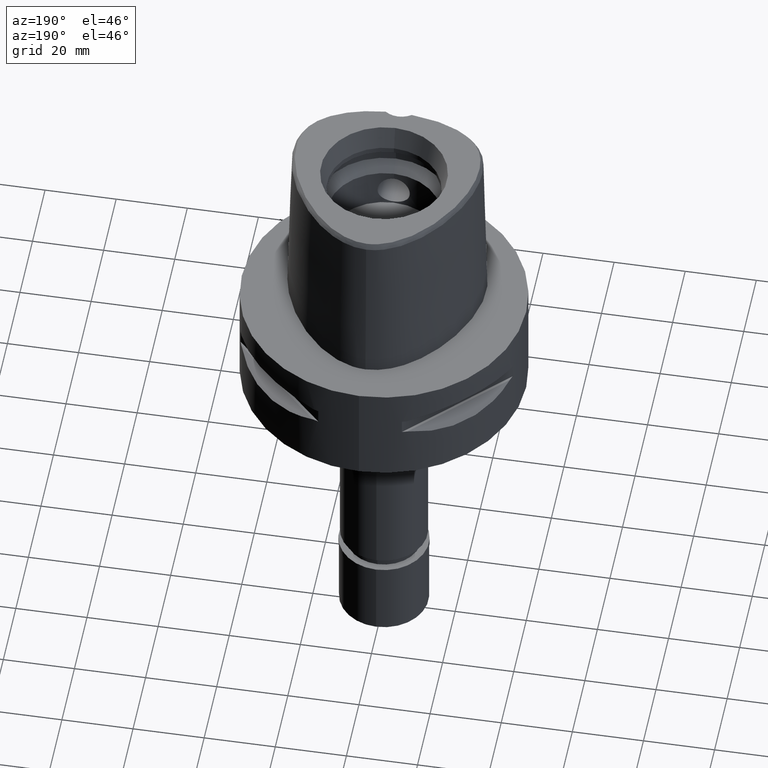
[diagram: clean part render]
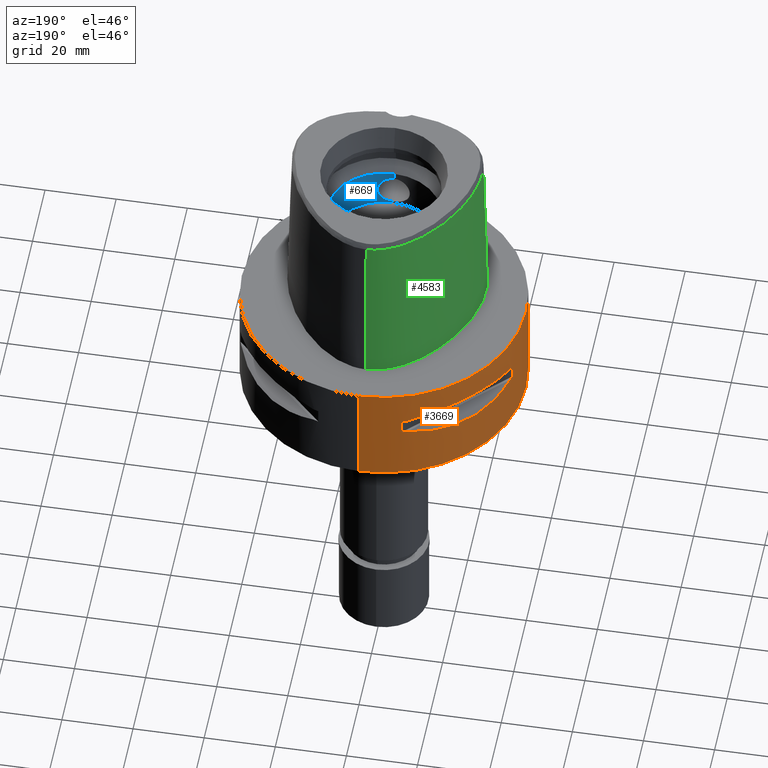
[diagram: same view with three faces highlighted in distinct colors, each labeled with its STEP entity id]
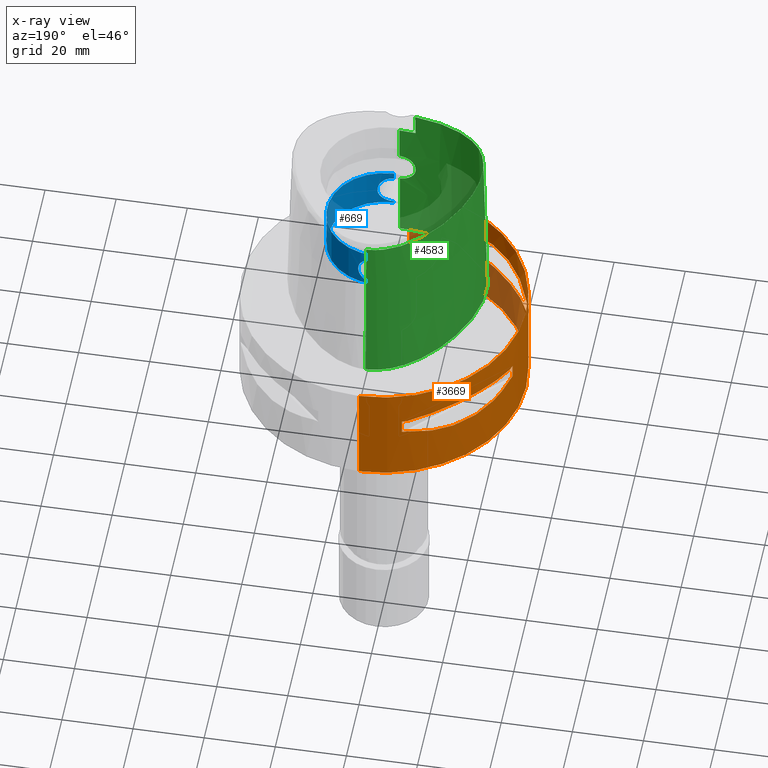
[diagram: x-ray of the same camera — body ghosted, the three highlighted faces saturated]
A machine part, auxiliary view with three faces highlighted in distinct colors.
The next image is the same camera in x-ray (body ghosted, the three faces saturated) — at least one of them is partly hidden behind the body in this view.
Their STEP definitions:

[orange] entity #3669 — the highlighted cylindrical surface (partial cylindrical patch) has radius 40 mm, axis along (0, 0, -1).
#14 = CARTESIAN_POINT ( 'NONE',  ( 0.0000000000000000000, 40.00000000000000000, -30.00000000000000000 ) ) ;
#29 = AXIS2_PLACEMENT_3D ( 'NONE', #2662, #1013, #4227 ) ;
#42 = EDGE_CURVE ( 'NONE', #272, #2557, #426, .T. ) ;
#62 = CARTESIAN_POINT ( 'NONE',  ( -11.76033600280999991, -38.23211342708000160, -14.05000000000000071 ) ) ;
#66 = DIRECTION ( 'NONE',  ( 0.0000000000000000000, 0.0000000000000000000, -1.000000000000000000 ) ) ;
#73 = CARTESIAN_POINT ( 'NONE',  ( -33.76566745674986691, -21.44484052678344455, -15.77571175125594394 ) ) ;
#74 = AXIS2_PLACEMENT_3D ( 'NONE', #2416, #1979, #1195 ) ;
#126 = CARTESIAN_POINT ( 'NONE',  ( -13.23717311056000057, -37.74622163926999718, -14.05000000000000071 ) ) ;
#135 = EDGE_CURVE ( 'NONE', #1489, #4680, #4269, .T. ) ;
#147 = CARTESIAN_POINT ( 'NONE',  ( -38.23211342708000160, -11.76033600280999991, -9.950000000000001066 ) ) ;
#170 = VECTOR ( 'NONE', #2183, 1000.000000000000000 ) ;
#202 = EDGE_CURVE ( 'NONE', #553, #739, #1654, .T. ) ;
#206 = CARTESIAN_POINT ( 'NONE',  ( -30.77249687753683105, 25.62819065487364512, -16.26160051743014279 ) ) ;
#253 = CIRCLE ( 'NONE', #580, 39.99999999999999289 ) ;
#257 = CARTESIAN_POINT ( 'NONE',  ( -33.39247868354666338, 22.02254759438567788, -15.85920599531292652 ) ) ;
#264 = ORIENTED_EDGE ( 'NONE', *, *, #3576, .T. ) ;
#272 = VERTEX_POINT ( 'NONE', #62 ) ;
#277 = AXIS2_PLACEMENT_3D ( 'NONE', #4810, #2851, #2103 ) ;
#303 = DIRECTION ( 'NONE',  ( 0.0000000000000000000, 0.0000000000000000000, 1.000000000000000000 ) ) ;
#384 = ORIENTED_EDGE ( 'NONE', *, *, #835, .T. ) ;
#413 = CARTESIAN_POINT ( 'NONE',  ( -38.23211342708000160, 11.76033600280999991, -9.950000000000001066 ) ) ;
#426 = LINE ( 'NONE', #3566, #1892 ) ;
#433 = CARTESIAN_POINT ( 'NONE',  ( -38.23211342708000160, -11.76033600280999991, -9.950000000000001066 ) ) ;
#446 = CARTESIAN_POINT ( 'NONE',  ( -34.44518065739791268, -20.34261333236362645, -15.60313948594344780 ) ) ;
#462 = DIRECTION ( 'NONE',  ( -0.2940084000702865574, -0.9558028356769561196, 0.0000000000000000000 ) ) ;
#470 = CARTESIAN_POINT ( 'NONE',  ( 0.0000000000000000000, -40.00000000000000000, 0.0000000000000000000 ) ) ;
#494 = DIRECTION ( 'NONE',  ( 0.0000000000000000000, 0.0000000000000000000, 1.000000000000000000 ) ) ;
#553 = VERTEX_POINT ( 'NONE', #644 ) ;
#580 = AXIS2_PLACEMENT_3D ( 'NONE', #4752, #494, #5047 ) ;
#595 = CARTESIAN_POINT ( 'NONE',  ( -27.25214773983183036, -29.31642813391925273, -16.33014064577127655 ) ) ;
#608 = LINE ( 'NONE', #1443, #170 ) ;
#644 = CARTESIAN_POINT ( 'NONE',  ( -37.74622163926999718, -13.23717311056000057, -14.05000000000000071 ) ) ;
#648 = CARTESIAN_POINT ( 'NONE',  ( -35.39137327286383794, 18.89342208872325202, -15.39779115588552827 ) ) ;
#667 = CARTESIAN_POINT ( 'NONE',  ( -38.23211342708000160, -11.76033600280999991, -14.05000000000000071 ) ) ;
#674 = CARTESIAN_POINT ( 'NONE',  ( -33.72697758561022852, 21.50560509406268750, -15.78472370821743276 ) ) ;
#689 = ORIENTED_EDGE ( 'NONE', *, *, #1225, .F. ) ;
#739 = VERTEX_POINT ( 'NONE', #667 ) ;
#835 = EDGE_CURVE ( 'NONE', #272, #1234, #4611, .T. ) ;
#861 = EDGE_CURVE ( 'NONE', #3441, #4008, #4195, .T. ) ;
#901 = DIRECTION ( 'NONE',  ( -0.9558028356769561196, 0.2940084000702865574, 0.0000000000000000000 ) ) ;
#903 = CARTESIAN_POINT ( 'NONE',  ( -21.75464223249087681, -33.56701934068381377, -15.82109001420596606 ) ) ;
#930 = CARTESIAN_POINT ( 'NONE',  ( -30.34851826271897224, -26.21995747454407422, -16.33009976522122741 ) ) ;
#931 = CIRCLE ( 'NONE', #277, 40.00000000000000000 ) ;
#979 = CARTESIAN_POINT ( 'NONE',  ( -37.74622163926999718, -13.23717311056000057, -9.950000000002001244 ) ) ;
#985 = CARTESIAN_POINT ( 'NONE',  ( -21.20128033779905863, 33.91944728533289322, -15.73905907260483872 ) ) ;
#1011 = CARTESIAN_POINT ( 'NONE',  ( -13.23717311056000057, 37.74622163926999718, -14.05000000000000071 ) ) ;
#1013 = DIRECTION ( 'NONE',  ( 0.0000000000000000000, 0.0000000000000000000, 1.000000000000000000 ) ) ;
#1016 = VERTEX_POINT ( 'NONE', #4685 ) ;
#1075 = DIRECTION ( 'NONE',  ( 0.0000000000000000000, 0.0000000000000000000, 1.000000000000000000 ) ) ;
#1113 = VERTEX_POINT ( 'NONE', #4212 ) ;
#1116 = CIRCLE ( 'NONE', #2831, 39.99999999999999289 ) ;
#1184 = ORIENTED_EDGE ( 'NONE', *, *, #42, .F. ) ;
#1195 = DIRECTION ( 'NONE',  ( -0.9436555409818374596, -0.3309293277639132058, 0.0000000000000000000 ) ) ;
#1211 = VERTEX_POINT ( 'NONE', #2955 ) ;
#1219 = EDGE_CURVE ( 'NONE', #1211, #4894, #3819, .T. ) ;
#1220 = DIRECTION ( 'NONE',  ( 0.0000000000000000000, 0.0000000000000000000, -1.000000000000000000 ) ) ;
#1225 = EDGE_CURVE ( 'NONE', #2654, #739, #4483, .T. ) ;
#1229 = CARTESIAN_POINT ( 'NONE',  ( -37.74622163926999718, -13.23717311056000057, -14.05000000000000071 ) ) ;
#1234 = VERTEX_POINT ( 'NONE', #126 ) ;
#1243 = EDGE_CURVE ( 'NONE', #4161, #2966, #2523, .T. ) ;
#1269 = AXIS2_PLACEMENT_3D ( 'NONE', #2413, #3218, #1367 ) ;
#1320 = CARTESIAN_POINT ( 'NONE',  ( -36.74073341983640972, -16.10435486224564983, -9.189966798093660572 ) ) ;
#1347 = CARTESIAN_POINT ( 'NONE',  ( -37.74622163926999718, 13.23717311056000057, -9.950000000002001244 ) ) ;
#1365 = B_SPLINE_CURVE_WITH_KNOTS ( 'NONE', 3,
 ( #1229, #3974, #3474, #4358, #446, #3590, #4772, #4001, #3615, #73, #1662, #1402, #930, #595, #4091, #4901, #2480, #2577, #903, #4432, #2883, #4843, #4869, #2911, #4048, #2530 ),
 .UNSPECIFIED., .F., .F.,
 ( 4, 1, 1, 1, 1, 1, 1, 2, 2, 2, 1, 1, 1, 1, 1, 1, 2, 2, 4 ),
 ( 0.0000000000000000000, 0.1249999999999758526, 0.1874999999999638900, 0.2187499999999580058, 0.2343749999999549805, 0.2421874999999535649, 0.2460937499999528988, 0.2480468749999527323, 0.2499999999999525380, 0.4999999999999500400, 0.6249999999999488187, 0.6874999999999481526, 0.7187499999999477085, 0.7343749999999477085, 0.7421874999999478195, 0.7460937499999479305, 0.7480468749999480416, 0.7499999999999482636, 1.000000000000000000 ),
 .UNSPECIFIED. ) ;
#1367 = DIRECTION ( 'NONE',  ( -0.9558028356769561196, -0.2940084000702865574, 0.0000000000000000000 ) ) ;
#1375 = EDGE_CURVE ( 'NONE', #1113, #4008, #608, .T. ) ;
#1384 = CARTESIAN_POINT ( 'NONE',  ( -20.34261333235522784, 34.44518065740082591, -15.60313948594118116 ) ) ;
#1398 = CARTESIAN_POINT ( 'NONE',  ( -18.83182902082664967, -35.41591128510518871, -8.619912199373718664 ) ) ;
#1402 = CARTESIAN_POINT ( 'NONE',  ( -32.16767032366980317, -23.95303639242290217, -16.14729882780574499 ) ) ;
#1426 = CARTESIAN_POINT ( 'NONE',  ( -13.23717311056000057, -37.74622163926999718, -9.950000000002001244 ) ) ;
#1443 = CARTESIAN_POINT ( 'NONE',  ( -11.76033600280999991, 38.23211342708000160, -9.950000000000001066 ) ) ;
#1445 = CIRCLE ( 'NONE', #29, 39.99999999999997868 ) ;
#1453 = DIRECTION ( 'NONE',  ( 0.0000000000000000000, 0.0000000000000000000, 1.000000000000000000 ) ) ;
#1460 = CARTESIAN_POINT ( 'NONE',  ( -19.18269457494219310, 35.11589783530285303, -15.40342377741356117 ) ) ;
#1473 = CARTESIAN_POINT ( 'NONE',  ( 0.0000000000000000000, -40.00000000000000000, 0.0000000000000000000 ) ) ;
#1486 = CARTESIAN_POINT ( 'NONE',  ( -33.71529052282350136, 21.52391145898932123, -15.78742602700011410 ) ) ;
#1489 = VERTEX_POINT ( 'NONE', #470 ) ;
#1505 = EDGE_CURVE ( 'NONE', #1113, #4161, #253, .T. ) ;
#1533 = CARTESIAN_POINT ( 'NONE',  ( 0.0000000000000000000, 1.292614696500000017E-14, -30.00000000000000000 ) ) ;
#1564 = ORIENTED_EDGE ( 'NONE', *, *, #2902, .T. ) ;
#1600 = CARTESIAN_POINT ( 'NONE',  ( 0.0000000000000000000, -40.00000000000000000, -30.00000000000000000 ) ) ;
#1612 = CARTESIAN_POINT ( 'NONE',  ( -13.23717311056000057, 37.74622163926999718, -9.950000000002001244 ) ) ;
#1654 = CIRCLE ( 'NONE', #74, 39.99999999999997868 ) ;
#1662 = CARTESIAN_POINT ( 'NONE',  ( -33.75216276490080247, -21.46607685731505555, -15.77886817953058696 ) ) ;
#1663 = EDGE_CURVE ( 'NONE', #553, #1234, #1365, .T. ) ;
#1708 = CARTESIAN_POINT ( 'NONE',  ( -36.74070924255632065, 16.10442380453153177, -9.189948522856573376 ) ) ;
#1709 = DIRECTION ( 'NONE',  ( 0.0000000000000000000, 0.0000000000000000000, -1.000000000000000000 ) ) ;
#1726 = CARTESIAN_POINT ( 'NONE',  ( -35.41596287858682501, -18.83173199168497192, -8.619939612229350345 ) ) ;
#1750 = CARTESIAN_POINT ( 'NONE',  ( -23.88355431031448006, 32.22577213862143708, -7.859897272588789008 ) ) ;
#1755 = CARTESIAN_POINT ( 'NONE',  ( -37.74622163926999718, 13.23717311056000057, -14.05000000000000071 ) ) ;
#1888 = CARTESIAN_POINT ( 'NONE',  ( -37.74622163926999718, 13.23717311056000057, -14.05000000000000071 ) ) ;
#1892 = VECTOR ( 'NONE', #3978, 1000.000000000000000 ) ;
#1916 = EDGE_LOOP ( 'NONE', ( #1564, #1184, #384, #3357, #2536, #689, #264, #5019 ) ) ;
#1979 = DIRECTION ( 'NONE',  ( 0.0000000000000000000, 0.0000000000000000000, -1.000000000000000000 ) ) ;
#1982 = AXIS2_PLACEMENT_3D ( 'NONE', #2368, #1220, #462 ) ;
#2016 = B_SPLINE_CURVE_WITH_KNOTS ( 'NONE', 3,
 ( #1011, #4145, #2198, #1460, #1384, #4510, #985, #3764, #2247, #3736, #4116, #2630, #2170, #4197, #206, #3352, #3020, #257, #4225, #4903, #4922, #1486, #674, #648, #4587, #1755 ),
 .UNSPECIFIED., .F., .F.,
 ( 4, 1, 1, 1, 1, 1, 1, 2, 2, 2, 1, 1, 1, 1, 1, 1, 2, 2, 4 ),
 ( 0.0000000000000000000, 0.1250000000000191513, 0.1875000000000286160, 0.2187500000000333344, 0.2343750000000358602, 0.2421875000000370537, 0.2460937500000373590, 0.2480468750000373868, 0.2500000000000374145, 0.5000000000000354161, 0.6250000000000345279, 0.6875000000000339728, 0.7187500000000336398, 0.7343750000000335287, 0.7421875000000334177, 0.7460937500000334177, 0.7480468750000331957, 0.7500000000000330846, 1.000000000000000000 ),
 .UNSPECIFIED. ) ;
#2026 = FACE_OUTER_BOUND ( 'NONE', #2254, .T. ) ;
#2030 = CARTESIAN_POINT ( 'NONE',  ( 0.0000000000000000000, 1.292614696500000017E-14, -14.05000000000000071 ) ) ;
#2058 = EDGE_CURVE ( 'NONE', #4848, #2118, #4766, .T. ) ;
#2084 = CARTESIAN_POINT ( 'NONE',  ( -23.88364259926271060, -32.22570670466006959, -7.859869859733158215 ) ) ;
#2103 = DIRECTION ( 'NONE',  ( 0.0000000000000000000, -1.000000000000000000, 0.0000000000000000000 ) ) ;
#2118 = VERTEX_POINT ( 'NONE', #14 ) ;
#2121 = ORIENTED_EDGE ( 'NONE', *, *, #2512, .T. ) ;
#2159 = VECTOR ( 'NONE', #1075, 1000.000000000000000 ) ;
#2170 = CARTESIAN_POINT ( 'NONE',  ( -26.21995747455951431, 30.34851826269486708, -16.33009976521767115 ) ) ;
#2183 = DIRECTION ( 'NONE',  ( 0.0000000000000000000, 0.0000000000000000000, -1.000000000000000000 ) ) ;
#2192 = CARTESIAN_POINT ( 'NONE',  ( -16.10435486224568891, 36.74073341983641683, -9.189966798093660572 ) ) ;
#2198 = CARTESIAN_POINT ( 'NONE',  ( -16.81132763101458849, 36.35358138588883037, -14.94059947015453105 ) ) ;
#2247 = CARTESIAN_POINT ( 'NONE',  ( -21.40429668490322612, 33.79139713908578102, -15.76966389594729101 ) ) ;
#2254 = EDGE_LOOP ( 'NONE', ( #2121, #2556, #4265, #3159 ) ) ;
#2288 = EDGE_LOOP ( 'NONE', ( #3361, #3670, #2297, #2816, #2889, #3236, #3002, #3904 ) ) ;
#2297 = ORIENTED_EDGE ( 'NONE', *, *, #4392, .T. ) ;
#2368 = CARTESIAN_POINT ( 'NONE',  ( 0.0000000000000000000, 1.292614696500000017E-14, -14.05000000000000071 ) ) ;
#2413 = CARTESIAN_POINT ( 'NONE',  ( 0.0000000000000000000, 1.292614696500000017E-14, -9.950000000000001066 ) ) ;
#2416 = CARTESIAN_POINT ( 'NONE',  ( 0.0000000000000000000, 1.292614696500000017E-14, -14.05000000000000071 ) ) ;
#2475 = CARTESIAN_POINT ( 'NONE',  ( -32.22577213862143708, -23.88355431031445875, -7.859897272588789008 ) ) ;
#2480 = CARTESIAN_POINT ( 'NONE',  ( -22.55421454656086766, -33.03835700910691031, -15.93168855142837081 ) ) ;
#2483 = CARTESIAN_POINT ( 'NONE',  ( 0.0000000000000000000, 40.00000000000000000, 0.0000000000000000000 ) ) ;
#2500 = CARTESIAN_POINT ( 'NONE',  ( -18.83173199168500744, 35.41596287858683212, -8.619939612229350345 ) ) ;
#2512 = EDGE_CURVE ( 'NONE', #2118, #4680, #4952, .T. ) ;
#2523 = B_SPLINE_CURVE_WITH_KNOTS ( 'NONE', 3,
 ( #3346, #2192, #2500, #1750, #2931, #3729, #4068, #3297, #1708, #1347 ),
 .UNSPECIFIED., .F., .F.,
 ( 4, 2, 2, 2, 4 ),
 ( 0.0000000000000000000, 0.2500000000000000000, 0.5000000000000000000, 0.7500000000000000000, 1.000000000000000000 ),
 .UNSPECIFIED. ) ;
#2526 = CARTESIAN_POINT ( 'NONE',  ( -13.23717311056000057, -37.74622163926999718, -9.950000000002001244 ) ) ;
#2530 = CARTESIAN_POINT ( 'NONE',  ( -13.23717311056000057, -37.74622163926999718, -14.05000000000000071 ) ) ;
#2536 = ORIENTED_EDGE ( 'NONE', *, *, #202, .T. ) ;
#2556 = ORIENTED_EDGE ( 'NONE', *, *, #135, .F. ) ;
#2557 = VERTEX_POINT ( 'NONE', #4186 ) ;
#2577 = CARTESIAN_POINT ( 'NONE',  ( -22.02254759438074316, -33.39247868354982529, -15.85920599531222308 ) ) ;
#2630 = CARTESIAN_POINT ( 'NONE',  ( -23.95303639238277782, 32.16767032370128732, -16.14729882780219228 ) ) ;
#2645 = DIRECTION ( 'NONE',  ( 0.0000000000000000000, 0.0000000000000000000, -1.000000000000000000 ) ) ;
#2654 = VERTEX_POINT ( 'NONE', #433 ) ;
#2661 = CIRCLE ( 'NONE', #1269, 39.99999999999999289 ) ;
#2662 = CARTESIAN_POINT ( 'NONE',  ( 0.0000000000000000000, 1.292614696500000017E-14, -9.950000000000001066 ) ) ;
#2815 = AXIS2_PLACEMENT_3D ( 'NONE', #1533, #1453, #4579 ) ;
#2816 = ORIENTED_EDGE ( 'NONE', *, *, #3952, .F. ) ;
#2831 = AXIS2_PLACEMENT_3D ( 'NONE', #4069, #1709, #901 ) ;
#2851 = DIRECTION ( 'NONE',  ( 0.0000000000000000000, 0.0000000000000000000, -1.000000000000000000 ) ) ;
#2878 = CARTESIAN_POINT ( 'NONE',  ( -16.10442380453150690, -36.74070924255632065, -9.189948522856573376 ) ) ;
#2883 = CARTESIAN_POINT ( 'NONE',  ( -21.56243030661606852, -33.69065616467215563, -15.79309434609241869 ) ) ;
#2889 = ORIENTED_EDGE ( 'NONE', *, *, #861, .T. ) ;
#2902 = EDGE_CURVE ( 'NONE', #4894, #2557, #3399, .T. ) ;
#2911 = CARTESIAN_POINT ( 'NONE',  ( -18.89342208872277595, -35.39137327286401558, -15.39779115588540925 ) ) ;
#2914 = EDGE_CURVE ( 'NONE', #1016, #4552, #2975, .T. ) ;
#2931 = CARTESIAN_POINT ( 'NONE',  ( -26.20795918968521221, 30.36058330523860960, -7.669882118585187314 ) ) ;
#2944 = CARTESIAN_POINT ( 'NONE',  ( -13.23717311056000057, 37.74622163926999718, -14.05000000000000071 ) ) ;
#2955 = CARTESIAN_POINT ( 'NONE',  ( -37.74622163926999718, -13.23717311056000057, -9.950000000002001244 ) ) ;
#2966 = VERTEX_POINT ( 'NONE', #4242 ) ;
#2975 = LINE ( 'NONE', #4597, #2159 ) ;
#3002 = ORIENTED_EDGE ( 'NONE', *, *, #1505, .T. ) ;
#3020 = CARTESIAN_POINT ( 'NONE',  ( -33.03835700910098438, 22.55421454657008340, -15.93168855142969598 ) ) ;
#3054 = AXIS2_PLACEMENT_3D ( 'NONE', #2030, #3223, #4017 ) ;
#3078 = AXIS2_PLACEMENT_3D ( 'NONE', #4443, #3673, #3243 ) ;
#3159 = ORIENTED_EDGE ( 'NONE', *, *, #2058, .T. ) ;
#3218 = DIRECTION ( 'NONE',  ( 0.0000000000000000000, 0.0000000000000000000, 1.000000000000000000 ) ) ;
#3223 = DIRECTION ( 'NONE',  ( 0.0000000000000000000, 0.0000000000000000000, -1.000000000000000000 ) ) ;
#3236 = ORIENTED_EDGE ( 'NONE', *, *, #1375, .F. ) ;
#3243 = DIRECTION ( 'NONE',  ( 0.0000000000000000000, -1.000000000000000000, 0.0000000000000000000 ) ) ;
#3297 = CARTESIAN_POINT ( 'NONE',  ( -35.41591128510521003, 18.83182902082666388, -8.619912199373718664 ) ) ;
#3306 = VECTOR ( 'NONE', #66, 1000.000000000000000 ) ;
#3346 = CARTESIAN_POINT ( 'NONE',  ( -13.23717311056000057, 37.74622163926999718, -9.950000000002001244 ) ) ;
#3352 = CARTESIAN_POINT ( 'NONE',  ( -32.30995221951103247, 23.60097336453846850, -16.06165603927749785 ) ) ;
#3357 = ORIENTED_EDGE ( 'NONE', *, *, #1663, .F. ) ;
#3361 = ORIENTED_EDGE ( 'NONE', *, *, #5063, .T. ) ;
#3399 = CIRCLE ( 'NONE', #4123, 39.99999999999997868 ) ;
#3424 = DIRECTION ( 'NONE',  ( -0.3309293277639132058, -0.9436555409818374596, 0.0000000000000000000 ) ) ;
#3438 = CARTESIAN_POINT ( 'NONE',  ( -11.76033600280999991, 38.23211342708000160, -14.05000000000000071 ) ) ;
#3441 = VERTEX_POINT ( 'NONE', #2944 ) ;
#3474 = CARTESIAN_POINT ( 'NONE',  ( -36.35358138588213706, -16.81132763103370209, -14.94059947015962386 ) ) ;
#3522 = VERTEX_POINT ( 'NONE', #1888 ) ;
#3531 = CARTESIAN_POINT ( 'NONE',  ( 0.0000000000000000000, 40.00000000000000000, 0.0000000000000000000 ) ) ;
#3566 = CARTESIAN_POINT ( 'NONE',  ( -11.76033600280999991, -38.23211342708000160, -14.05000000000000071 ) ) ;
#3576 = EDGE_CURVE ( 'NONE', #2654, #1211, #2661, .T. ) ;
#3590 = CARTESIAN_POINT ( 'NONE',  ( -34.09685321779600997, -20.91613153242858658, -15.69507322893076662 ) ) ;
#3615 = CARTESIAN_POINT ( 'NONE',  ( -33.79139713908553944, -21.40429668490394732, -15.76966389594752016 ) ) ;
#3669 = ADVANCED_FACE ( 'NONE', ( #2026, #3694, #4374 ), #4786, .T. ) ;
#3670 = ORIENTED_EDGE ( 'NONE', *, *, #2914, .F. ) ;
#3673 = DIRECTION ( 'NONE',  ( 0.0000000000000000000, 0.0000000000000000000, -1.000000000000000000 ) ) ;
#3694 = FACE_BOUND ( 'NONE', #2288, .T. ) ;
#3718 = EDGE_CURVE ( 'NONE', #1489, #4848, #931, .T. ) ;
#3729 = CARTESIAN_POINT ( 'NONE',  ( -30.36058330523860960, 26.20795918968521576, -7.669863843575452478 ) ) ;
#3736 = CARTESIAN_POINT ( 'NONE',  ( -21.44484052678305730, 33.76566745674997350, -15.77571175125580893 ) ) ;
#3764 = CARTESIAN_POINT ( 'NONE',  ( -21.34345216682169877, 33.82993376593478985, -15.76055673748776798 ) ) ;
#3819 = B_SPLINE_CURVE_WITH_KNOTS ( 'NONE', 3,
 ( #979, #1320, #1726, #2475, #4863, #4043, #2084, #1398, #2878, #2526 ),
 .UNSPECIFIED., .F., .F.,
 ( 4, 2, 2, 2, 4 ),
 ( 0.0000000000000000000, 0.2500000000000000000, 0.5000000000000000000, 0.7500000000000000000, 1.000000000000000000 ),
 .UNSPECIFIED. ) ;
#3904 = ORIENTED_EDGE ( 'NONE', *, *, #1243, .T. ) ;
#3952 = EDGE_CURVE ( 'NONE', #3441, #3522, #2016, .T. ) ;
#3974 = CARTESIAN_POINT ( 'NONE',  ( -37.23659447744208251, -14.69039122919928531, -14.43521939501465035 ) ) ;
#3978 = DIRECTION ( 'NONE',  ( 0.0000000000000000000, 0.0000000000000000000, 1.000000000000000000 ) ) ;
#4001 = CARTESIAN_POINT ( 'NONE',  ( -33.82993376593436352, -21.34345216682292090, -15.76055673748811792 ) ) ;
#4008 = VERTEX_POINT ( 'NONE', #3438 ) ;
#4017 = DIRECTION ( 'NONE',  ( -0.3309293277639132058, 0.9436555409818374596, 0.0000000000000000000 ) ) ;
#4043 = CARTESIAN_POINT ( 'NONE',  ( -26.20795918968520510, -30.36058330523858473, -7.669863843575452478 ) ) ;
#4048 = CARTESIAN_POINT ( 'NONE',  ( -16.14402792110914930, -36.72682052670094777, -14.82054974552934468 ) ) ;
#4068 = CARTESIAN_POINT ( 'NONE',  ( -32.22570670466009801, 23.88364259926271060, -7.859869859733158215 ) ) ;
#4069 = CARTESIAN_POINT ( 'NONE',  ( 0.0000000000000000000, 1.292614696500000017E-14, -14.05000000000000071 ) ) ;
#4091 = CARTESIAN_POINT ( 'NONE',  ( -25.62819065485258463, -30.77249687755037399, -16.26160051742709101 ) ) ;
#4116 = CARTESIAN_POINT ( 'NONE',  ( -21.46607685731531490, 33.75216276490056089, -15.77886817953056564 ) ) ;
#4123 = AXIS2_PLACEMENT_3D ( 'NONE', #4521, #303, #3424 ) ;
#4137 = DIRECTION ( 'NONE',  ( 0.0000000000000000000, 0.0000000000000000000, -1.000000000000000000 ) ) ;
#4145 = CARTESIAN_POINT ( 'NONE',  ( -14.69039122918836426, 37.23659447744591233, -14.43521939501172469 ) ) ;
#4161 = VERTEX_POINT ( 'NONE', #1612 ) ;
#4186 = CARTESIAN_POINT ( 'NONE',  ( -11.76033600280999991, -38.23211342708000160, -9.950000000000001066 ) ) ;
#4195 = CIRCLE ( 'NONE', #3054, 39.99999999999997868 ) ;
#4197 = CARTESIAN_POINT ( 'NONE',  ( -29.31642813391150426, 27.25214773984385630, -16.33014064577301028 ) ) ;
#4212 = CARTESIAN_POINT ( 'NONE',  ( -11.76033600280999991, 38.23211342708000160, -9.950000000000001066 ) ) ;
#4225 = CARTESIAN_POINT ( 'NONE',  ( -33.56701934068217952, 21.75464223249340634, -15.82109001420632310 ) ) ;
#4227 = DIRECTION ( 'NONE',  ( -0.9436555409818374596, 0.3309293277639132058, 0.0000000000000000000 ) ) ;
#4242 = CARTESIAN_POINT ( 'NONE',  ( -37.74622163926999718, 13.23717311056000057, -9.950000000002001244 ) ) ;
#4265 = ORIENTED_EDGE ( 'NONE', *, *, #3718, .T. ) ;
#4269 = LINE ( 'NONE', #1473, #5022 ) ;
#4358 = CARTESIAN_POINT ( 'NONE',  ( -35.11589783529782949, -19.18269457495653185, -15.40342377741739988 ) ) ;
#4366 = VECTOR ( 'NONE', #4137, 1000.000000000000000 ) ;
#4374 = FACE_BOUND ( 'NONE', #1916, .T. ) ;
#4392 = EDGE_CURVE ( 'NONE', #1016, #3522, #1116, .T. ) ;
#4432 = CARTESIAN_POINT ( 'NONE',  ( -21.62017158009599527, -33.65365962422892210, -15.80156334789078265 ) ) ;
#4443 = CARTESIAN_POINT ( 'NONE',  ( 0.0000000000000000000, 1.292614696500000017E-14, 5.549999999999999822 ) ) ;
#4483 = LINE ( 'NONE', #147, #4366 ) ;
#4510 = CARTESIAN_POINT ( 'NONE',  ( -20.91613153242406398, 34.09685321779756606, -15.69507322892952139 ) ) ;
#4521 = CARTESIAN_POINT ( 'NONE',  ( 0.0000000000000000000, 1.292614696500000017E-14, -9.950000000000001066 ) ) ;
#4552 = VERTEX_POINT ( 'NONE', #413 ) ;
#4579 = DIRECTION ( 'NONE',  ( 0.0000000000000000000, 1.000000000000000000, 0.0000000000000000000 ) ) ;
#4587 = CARTESIAN_POINT ( 'NONE',  ( -36.72682052670077013, 16.14402792110960050, -14.82054974552945303 ) ) ;
#4597 = CARTESIAN_POINT ( 'NONE',  ( -38.23211342708000160, 11.76033600280999991, -14.05000000000000071 ) ) ;
#4611 = CIRCLE ( 'NONE', #1982, 39.99999999999999289 ) ;
#4680 = VERTEX_POINT ( 'NONE', #1600 ) ;
#4685 = CARTESIAN_POINT ( 'NONE',  ( -38.23211342708000160, 11.76033600280999991, -14.05000000000000071 ) ) ;
#4752 = CARTESIAN_POINT ( 'NONE',  ( 0.0000000000000000000, 1.292614696500000017E-14, -9.950000000000001066 ) ) ;
#4766 = LINE ( 'NONE', #3531, #3306 ) ;
#4772 = CARTESIAN_POINT ( 'NONE',  ( -33.91944728533206188, -21.20128033780140697, -15.73905907260549064 ) ) ;
#4786 = CYLINDRICAL_SURFACE ( 'NONE', #3078, 40.00000000000000000 ) ;
#4810 = CARTESIAN_POINT ( 'NONE',  ( 0.0000000000000000000, 1.292614696500000017E-14, 0.0000000000000000000 ) ) ;
#4843 = CARTESIAN_POINT ( 'NONE',  ( -21.52391145898895886, -33.71529052282375005, -15.78742602700008035 ) ) ;
#4848 = VERTEX_POINT ( 'NONE', #2483 ) ;
#4863 = CARTESIAN_POINT ( 'NONE',  ( -30.36058330523857407, -26.20795918968521576, -7.669882118585187314 ) ) ;
#4869 = CARTESIAN_POINT ( 'NONE',  ( -21.50560509406269460, -33.72697758561022852, -15.78472370821745407 ) ) ;
#4894 = VERTEX_POINT ( 'NONE', #1426 ) ;
#4901 = CARTESIAN_POINT ( 'NONE',  ( -23.60097336452268024, -32.30995221952120744, -16.06165603927522056 ) ) ;
#4903 = CARTESIAN_POINT ( 'NONE',  ( -33.65365962422809787, 21.62017158009728846, -15.80156334789097095 ) ) ;
#4922 = CARTESIAN_POINT ( 'NONE',  ( -33.69065616467168667, 21.56243030661679327, -15.79309434609251639 ) ) ;
#4952 = CIRCLE ( 'NONE', #2815, 40.00000000000000000 ) ;
#5019 = ORIENTED_EDGE ( 'NONE', *, *, #1219, .T. ) ;
#5022 = VECTOR ( 'NONE', #2645, 1000.000000000000000 ) ;
#5047 = DIRECTION ( 'NONE',  ( -0.2940084000702865574, 0.9558028356769561196, 0.0000000000000000000 ) ) ;
#5063 = EDGE_CURVE ( 'NONE', #2966, #4552, #1445, .T. ) ;

[blue] entity #669 — the highlighted cylindrical surface (partial cylindrical patch) has radius 16 mm, axis along (0, 0, -1).
#25 = CARTESIAN_POINT ( 'NONE',  ( 3.808567360694083082, 15.54008837984970448, 27.48944576345719071 ) ) ;
#52 = CARTESIAN_POINT ( 'NONE',  ( 3.770769065056644109, 15.54928285109028430, 22.45366879351147560 ) ) ;
#102 = B_SPLINE_CURVE_WITH_KNOTS ( 'NONE', 3,
 ( #1701, #1720, #4831, #1312, #916, #4059, #1336, #947, #2517, #556, #766, #736, #3906, #4728, #4285, #2174, #381, #3593, #2793, #2336, #2402, #425, #352, #1992, #2310, #4262, #4340, #3162, #3976, #1134, #3111, #1231, #1918, #448, #52, #4652, #2769, #2018, #3876, #3498, #1595, #1947, #3133, #811, #4362, #3187, #4676, #832, #3520, #2717, #4754, #5074, #1548, #5097, #1157, #3084, #1567, #4703, #1209, #2695, #1183, #2744, #3935, #2380, #4313, #789, #2360, #3539, #3955, #403, #1965, #3565, #25, #1619, #1257, #548, #4004, #1690, #3210, #4822, #882, #2452, #4871, #3281, #3304, #4461, #132, #4798, #3639, #4434, #1354, #105, #4845, #2814, #860, #906, #2114, #2064, #1713, #1278, #2040, #4028, #2885, #497, #3234 ),
 .UNSPECIFIED., .F., .F.,
 ( 4, 2, 2, 1, 1, 1, 1, 2, 2, 2, 2, 2, 1, 1, 2, 2, 2, 2, 1, 1, 1, 1, 2, 2, 2, 2, 1, 1, 2, 2, 2, 2, 2, 2, 2, 1, 1, 1, 2, 2, 2, 2, 1, 1, 1, 2, 2, 2, 2, 2, 2, 2, 1, 1, 1, 2, 2, 2, 2, 1, 1, 2, 2, 4 ),
 ( 0.0000000000000000000, 0.06249999999998326339, 0.09374999999997492284, 0.1093749999999706346, 0.1171874999999684142, 0.1210937499999673039, 0.1230468749999665962, 0.1240234374999663464, 0.1249999999999660966, 0.1874999999999688860, 0.2187499999999702738, 0.2343749999999709122, 0.2421874999999713562, 0.2460937499999715505, 0.2480468749999716893, 0.2499999999999718558, 0.2812499999999798495, 0.2968749999999835687, 0.3046874999999850675, 0.3085937499999857891, 0.3105468749999866218, 0.3115234374999865663, 0.3120117187499870104, 0.3124999999999873990, 0.3437499999999841793, 0.3593749999999822919, 0.3671874999999817368, 0.3710937499999817923, 0.3730468749999814593, 0.3749999999999811817, 0.4374999999999715783, 0.4687499999999668043, 0.4999999999999620304, 0.5624999999999523714, 0.5937499999999479305, 0.6093749999999460432, 0.6171874999999450440, 0.6210937499999449329, 0.6230468749999448219, 0.6249999999999447109, 0.6562499999999460432, 0.6718749999999465983, 0.6796874999999467093, 0.6835937499999469313, 0.6855468749999472644, 0.6865234374999478195, 0.6874999999999483746, 0.7187499999999671374, 0.7343749999999763522, 0.7499999999999854561, 0.7812500000000036637, 0.7968750000000127676, 0.8046875000000170974, 0.8085937500000193179, 0.8105468750000200950, 0.8115234375000200950, 0.8125000000000199840, 0.8437500000000179856, 0.8593750000000169864, 0.8671875000000163203, 0.8710937500000159872, 0.8730468750000156541, 0.8750000000000153211, 1.000000000000000000 ),
 .UNSPECIFIED. ) ;
#105 = CARTESIAN_POINT ( 'NONE',  ( 2.539990947859056991, 15.79711040860282800, 28.77504597664480457 ) ) ;
#132 = CARTESIAN_POINT ( 'NONE',  ( 2.615076321103766865, 15.78484770969369677, 28.72361617529184130 ) ) ;
#192 = CARTESIAN_POINT ( 'NONE',  ( 1.140783603876998065, -15.95958409823423629, 29.40723668847786598 ) ) ;
#209 = ORIENTED_EDGE ( 'NONE', *, *, #837, .T. ) ;
#217 = CARTESIAN_POINT ( 'NONE',  ( 3.164591427249837441, -15.68391229428003975, 28.26925117184790537 ) ) ;
#229 = EDGE_CURVE ( 'NONE', #1523, #2794, #3603, .T. ) ;
#245 = CARTESIAN_POINT ( 'NONE',  ( 3.138951541147065871, -15.68906150298183810, 28.29400456608264136 ) ) ;
#254 = ORIENTED_EDGE ( 'NONE', *, *, #4649, .F. ) ;
#278 = CARTESIAN_POINT ( 'NONE',  ( 3.803025602435695873, -15.54144546655661507, 22.50209651552996704 ) ) ;
#287 = LINE ( 'NONE', #1855, #3556 ) ;
#307 = CARTESIAN_POINT ( 'NONE',  ( 3.536504642215984262, -15.60453110576458258, 22.13622431639432619 ) ) ;
#331 = CARTESIAN_POINT ( 'NONE',  ( 4.196349607671426618, -15.44005382475887700, 26.75875646608632152 ) ) ;
#352 = CARTESIAN_POINT ( 'NONE',  ( 3.164574645539931730, 15.68391565186763259, 21.73073258347122660 ) ) ;
#360 = CARTESIAN_POINT ( 'NONE',  ( 2.399866741067399278, -15.81961133750779069, 21.13090355244648322 ) ) ;
#381 = CARTESIAN_POINT ( 'NONE',  ( 2.655282872631104851, 15.77765202240864006, 21.30120896309794887 ) ) ;
#387 = CARTESIAN_POINT ( 'NONE',  ( 4.411054695672140369, -15.38060105775067399, 26.15499689250681215 ) ) ;
#403 = CARTESIAN_POINT ( 'NONE',  ( 3.873231694581336981, 15.52414087640189422, 27.38816680148095628 ) ) ;
#425 = CARTESIAN_POINT ( 'NONE',  ( 3.138934460035402552, 15.68906488019960399, 21.70597915492542285 ) ) ;
#448 = CARTESIAN_POINT ( 'NONE',  ( 3.768408302306571311, 15.54985571207991946, 22.45017396537998167 ) ) ;
#457 = CARTESIAN_POINT ( 'NONE',  ( 0.0000000000000000000, 16.00000000000000000, 29.55000000000000071 ) ) ;
#473 = VERTEX_POINT ( 'NONE', #5004 ) ;
#481 = LINE ( 'NONE', #457, #1105 ) ;
#497 = CARTESIAN_POINT ( 'NONE',  ( 0.5625441148407793746, 16.00000000000000355, 29.54999999999999716 ) ) ;
#528 = ORIENTED_EDGE ( 'NONE', *, *, #576, .F. ) ;
#548 = CARTESIAN_POINT ( 'NONE',  ( 3.744577833333051942, 15.55572763834058136, 27.58647462693214436 ) ) ;
#556 = CARTESIAN_POINT ( 'NONE',  ( 1.684854944398653354, 15.91096538466818799, 20.77342622897239366 ) ) ;
#576 = EDGE_CURVE ( 'NONE', #473, #2669, #3761, .T. ) ;
#588 = CARTESIAN_POINT ( 'NONE',  ( 0.0000000000000000000, 0.0000000000000000000, 31.50000000000000000 ) ) ;
#636 = CARTESIAN_POINT ( 'NONE',  ( 3.189316939996577727, -15.67891379176638367, 28.24514002011345326 ) ) ;
#660 = CARTESIAN_POINT ( 'NONE',  ( 3.751169547828881345, -15.55403617233515234, 27.57516546916804856 ) ) ;
#669 = ADVANCED_FACE ( 'NONE', ( #4999 ), #4582, .F. ) ;
#679 = ORIENTED_EDGE ( 'NONE', *, *, #3614, .F. ) ;
#687 = CARTESIAN_POINT ( 'NONE',  ( 4.261969212494427062, -15.42206096146380645, 23.40603321982711194 ) ) ;
#720 = CARTESIAN_POINT ( 'NONE',  ( 4.407196174939886468, -15.38151568680674330, 23.85895058723729889 ) ) ;
#736 = CARTESIAN_POINT ( 'NONE',  ( 1.707180498156300796, 15.90858418701494514, 20.78241088730787567 ) ) ;
#744 = CARTESIAN_POINT ( 'NONE',  ( 2.546587751938866440, -15.79604663803838704, 21.22940300794441271 ) ) ;
#766 = CARTESIAN_POINT ( 'NONE',  ( 1.698251660413373276, 15.90953892135420844, 20.77880769513073389 ) ) ;
#770 = CARTESIAN_POINT ( 'NONE',  ( 1.997936047084001743, -15.87476822621203887, 20.91148056799755395 ) ) ;
#774 = DIRECTION ( 'NONE',  ( 0.0000000000000000000, 0.0000000000000000000, 1.000000000000000000 ) ) ;
#789 = CARTESIAN_POINT ( 'NONE',  ( 4.102398804099499863, 15.46541759479365474, 26.97353641209905106 ) ) ;
#795 = CARTESIAN_POINT ( 'NONE',  ( 3.866437423702234977, -15.52606563446129861, 27.40429148410201776 ) ) ;
#811 = CARTESIAN_POINT ( 'NONE',  ( 4.179513332662541103, 15.44462306662030748, 23.20147437628193288 ) ) ;
#825 = CIRCLE ( 'NONE', #4036, 16.00000000000000000 ) ;
#832 = CARTESIAN_POINT ( 'NONE',  ( 4.323958204506745950, 15.40531264616215168, 23.54890256027930917 ) ) ;
#837 = EDGE_CURVE ( 'NONE', #473, #1523, #2881, .T. ) ;
#860 = CARTESIAN_POINT ( 'NONE',  ( 2.064188499685046363, 15.86630605858574050, 29.05553078202870054 ) ) ;
#882 = CARTESIAN_POINT ( 'NONE',  ( 3.303420936139878528, 15.65543299877410632, 28.13045502940758880 ) ) ;
#906 = CARTESIAN_POINT ( 'NONE',  ( 1.997966242465542219, 15.87476439169957132, 29.08850468433677960 ) ) ;
#910 = VERTEX_POINT ( 'NONE', #1679 ) ;
#916 = CARTESIAN_POINT ( 'NONE',  ( 1.140765637931138832, 15.95958541883533321, 20.59275875371697140 ) ) ;
#947 = CARTESIAN_POINT ( 'NONE',  ( 1.590917537195596365, 15.92067435631518535, 20.73689644766729145 ) ) ;
#975 = CARTESIAN_POINT ( 'NONE',  ( 0.5640746612217173439, -15.99230173299699764, 29.52441511482192382 ) ) ;
#1029 = CARTESIAN_POINT ( 'NONE',  ( 3.608925104561844677, -15.58793851891443616, 27.77197051516056092 ) ) ;
#1053 = CARTESIAN_POINT ( 'NONE',  ( 3.649467371010107541, -15.57840986860043841, 27.71798782283265439 ) ) ;
#1060 = CARTESIAN_POINT ( 'NONE',  ( 0.0000000000000000000, 0.0000000000000000000, 50.39999999999999858 ) ) ;
#1078 = CARTESIAN_POINT ( 'NONE',  ( 4.219629281423734390, -15.43366229842501802, 23.29784757614799773 ) ) ;
#1087 = ORIENTED_EDGE ( 'NONE', *, *, #3784, .F. ) ;
#1105 = VECTOR ( 'NONE', #3267, 1000.000000000000000 ) ;
#1110 = CARTESIAN_POINT ( 'NONE',  ( 4.237586783300753446, -15.42875071981104540, 23.34288945884287969 ) ) ;
#1134 = CARTESIAN_POINT ( 'NONE',  ( 3.702056837342557749, 15.56588022034166308, 22.35459497852146171 ) ) ;
#1141 = CARTESIAN_POINT ( 'NONE',  ( 3.873230888532573246, -15.52414120514505846, 22.61183188859394377 ) ) ;
#1157 = CARTESIAN_POINT ( 'NONE',  ( 4.524616351024969951, 15.34742497676284323, 25.56279076736300837 ) ) ;
#1164 = CARTESIAN_POINT ( 'NONE',  ( 2.064158054803488351, -15.86631005044291953, 20.94445373430341206 ) ) ;
#1183 = CARTESIAN_POINT ( 'NONE',  ( 4.237594218959427117, 15.42874910287936885, 26.65709153774102091 ) ) ;
#1188 = CARTESIAN_POINT ( 'NONE',  ( 3.744574952276495505, -15.55572859462526125, 22.41352109345751131 ) ) ;
#1191 = EDGE_CURVE ( 'NONE', #1305, #4525, #825, .T. ) ;
#1209 = CARTESIAN_POINT ( 'NONE',  ( 4.308080894153137663, 15.40933754407856071, 26.46739704395607617 ) ) ;
#1231 = CARTESIAN_POINT ( 'NONE',  ( 3.751177014585044489, 15.55403459793542886, 22.42484540278838878 ) ) ;
#1257 = CARTESIAN_POINT ( 'NONE',  ( 3.799106346160691761, 15.54240362262295072, 27.50385701843189779 ) ) ;
#1278 = CARTESIAN_POINT ( 'NONE',  ( 1.770126022873107052, 15.90163656242414980, 29.19156648951052802 ) ) ;
#1305 = VERTEX_POINT ( 'NONE', #3275 ) ;
#1312 = CARTESIAN_POINT ( 'NONE',  ( 0.9961926526222818490, 15.96920793816025075, 20.55797314717334601 ) ) ;
#1336 = CARTESIAN_POINT ( 'NONE',  ( 1.465288112847901170, 15.93288292770866299, 20.69121855440856095 ) ) ;
#1339 = CARTESIAN_POINT ( 'NONE',  ( 3.762791444843096134, -15.55121822181426339, 27.55811620615406099 ) ) ;
#1354 = CARTESIAN_POINT ( 'NONE',  ( 2.541157522325143248, 15.79692219589827040, 28.77425877510935237 ) ) ;
#1379 = CARTESIAN_POINT ( 'NONE',  ( 0.0000000000000000000, 16.00000000000000000, 20.00000000000000000 ) ) ;
#1385 = CARTESIAN_POINT ( 'NONE',  ( 1.770096349574414862, -15.90163990256727011, 20.80842097945863856 ) ) ;
#1393 = CARTESIAN_POINT ( 'NONE',  ( 1.912207018549581639, -15.88647873226976870, 29.13410031170253944 ) ) ;
#1449 = CARTESIAN_POINT ( 'NONE',  ( 3.468490236578468888, -15.62005317905867585, 27.94868093692495137 ) ) ;
#1474 = CARTESIAN_POINT ( 'NONE',  ( 3.484915605883006418, -15.61614794283481622, 22.07329374033457015 ) ) ;
#1499 = CARTESIAN_POINT ( 'NONE',  ( 4.189654095399452771, -15.44187240023451402, 26.77464726007936235 ) ) ;
#1523 = VERTEX_POINT ( 'NONE', #4387 ) ;
#1528 = CARTESIAN_POINT ( 'NONE',  ( 2.615044023381621674, -15.78485302022387948, 21.27636114051184535 ) ) ;
#1548 = CARTESIAN_POINT ( 'NONE',  ( 4.550015144519941934, 15.33941179770987517, 24.86210157583440861 ) ) ;
#1551 = CARTESIAN_POINT ( 'NONE',  ( 4.199163403025234054, -15.43928878248925685, 26.75203429825822354 ) ) ;
#1567 = CARTESIAN_POINT ( 'NONE',  ( 4.407204992252795606, 15.38151343653829706, 26.14101585880370493 ) ) ;
#1575 = CARTESIAN_POINT ( 'NONE',  ( 4.226850584642154018, -15.43168826605275967, 23.31585977965487899 ) ) ;
#1578 = VECTOR ( 'NONE', #3374, 1000.000000000000000 ) ;
#1595 = CARTESIAN_POINT ( 'NONE',  ( 4.086977290058713130, 15.46939710897481035, 22.99892130830205161 ) ) ;
#1619 = CARTESIAN_POINT ( 'NONE',  ( 3.803026785370460239, 15.54144497152026005, 27.49790168339229268 ) ) ;
#1679 = CARTESIAN_POINT ( 'NONE',  ( 0.0000000000000000000, 16.00000000000000000, 29.55000000000000071 ) ) ;
#1690 = CARTESIAN_POINT ( 'NONE',  ( 3.536514746095787753, 15.60452860942282882, 27.86376314437882584 ) ) ;
#1701 = CARTESIAN_POINT ( 'NONE',  ( 0.0000000000000000000, 16.00000000000000000, 20.44999999999999929 ) ) ;
#1713 = CARTESIAN_POINT ( 'NONE',  ( 1.794241281088946538, 15.89894680430184870, 29.18135549406216001 ) ) ;
#1720 = CARTESIAN_POINT ( 'NONE',  ( 0.2782013016087116486, 16.00000000000000711, 20.44999999999999929 ) ) ;
#1723 = CARTESIAN_POINT ( 'NONE',  ( 3.770760734101257672, -15.54928465813047467, 27.54634354341527214 ) ) ;
#1730 = VECTOR ( 'NONE', #774, 1000.000000000000000 ) ;
#1760 = ORIENTED_EDGE ( 'NONE', *, *, #229, .T. ) ;
#1768 = CARTESIAN_POINT ( 'NONE',  ( 1.653598826387909337, -15.91425152984741587, 29.23895709058962211 ) ) ;
#1775 = DIRECTION ( 'NONE',  ( 0.0000000000000000000, -1.000000000000000000, 0.0000000000000000000 ) ) ;
#1846 = CARTESIAN_POINT ( 'NONE',  ( 3.947479188516170634, -15.50564484583954972, 27.26777929392947541 ) ) ;
#1855 = CARTESIAN_POINT ( 'NONE',  ( 0.0000000000000000000, -16.00000000000000000, 29.55000000000000071 ) ) ;
#1869 = EDGE_CURVE ( 'NONE', #3687, #1305, #287, .T. ) ;
#1872 = CARTESIAN_POINT ( 'NONE',  ( 4.495814971635935464, -15.35588874103671309, 25.71580589428425156 ) ) ;
#1897 = CARTESIAN_POINT ( 'NONE',  ( 2.729566476647385276, -15.76541014072637914, 21.35911620692725776 ) ) ;
#1918 = CARTESIAN_POINT ( 'NONE',  ( 3.762799422655159098, 15.55121651042639286, 22.44189552752343531 ) ) ;
#1925 = CARTESIAN_POINT ( 'NONE',  ( 3.816844945112704224, -15.53805976672786748, 22.52323341781271537 ) ) ;
#1947 = CARTESIAN_POINT ( 'NONE',  ( 4.132994277929871174, 15.45714554146470299, 23.09680318317974468 ) ) ;
#1952 = CARTESIAN_POINT ( 'NONE',  ( 4.549966242427916363, -15.33940732230152371, 24.72265458138945604 ) ) ;
#1965 = CARTESIAN_POINT ( 'NONE',  ( 3.835938342212285246, 15.53336553550021826, 27.44719883375519487 ) ) ;
#1992 = CARTESIAN_POINT ( 'NONE',  ( 3.181663106865356028, 15.68046594129727467, 21.74736076356709447 ) ) ;
#2018 = CARTESIAN_POINT ( 'NONE',  ( 3.866446441656405053, 15.52606353178010146, 22.59572289394028388 ) ) ;
#2040 = CARTESIAN_POINT ( 'NONE',  ( 1.754075067417435685, 15.90341442921059212, 29.19830875838172446 ) ) ;
#2048 = CARTESIAN_POINT ( 'NONE',  ( 0.0000000000000000000, -16.00000000000000000, 29.55000000000000071 ) ) ;
#2064 = CARTESIAN_POINT ( 'NONE',  ( 1.850775727735421761, 15.89250999641800277, 29.15683968795807246 ) ) ;
#2065 = CARTESIAN_POINT ( 'NONE',  ( 1.159171110856038078, -15.96839087129520429, 20.55577344028494480 ) ) ;
#2114 = CARTESIAN_POINT ( 'NONE',  ( 1.899667195915813789, 15.88671723720592333, 29.13461902231998835 ) ) ;
#2116 = EDGE_LOOP ( 'NONE', ( #528, #209, #1760, #254, #3266, #3415, #679, #1087 ) ) ;
#2174 = CARTESIAN_POINT ( 'NONE',  ( 2.523274599126036577, 15.79903356785867707, 21.21083401394948353 ) ) ;
#2236 = CARTESIAN_POINT ( 'NONE',  ( 3.079092618832109274, -15.70089896343313995, 28.35045023963298405 ) ) ;
#2266 = CARTESIAN_POINT ( 'NONE',  ( 4.524610095710491997, -15.34742685073316970, 24.43716217436503158 ) ) ;
#2294 = CARTESIAN_POINT ( 'NONE',  ( 3.674610039138421769, -15.57277448595782765, 22.31261352575248225 ) ) ;
#2310 = CARTESIAN_POINT ( 'NONE',  ( 3.189300142112289738, 15.67891719244999749, 21.75484346891159859 ) ) ;
#2318 = CARTESIAN_POINT ( 'NONE',  ( 2.541124487614295990, -15.79692748426237259, 21.22571898326704698 ) ) ;
#2336 = CARTESIAN_POINT ( 'NONE',  ( 3.027778350135660101, 15.71074476488255911, 21.60336740794899058 ) ) ;
#2343 = CARTESIAN_POINT ( 'NONE',  ( 3.808566221780114613, -15.54008885938420015, 22.51055249406128311 ) ) ;
#2360 = CARTESIAN_POINT ( 'NONE',  ( 3.999412507002769512, 15.49220485057000829, 27.17087656910043592 ) ) ;
#2364 = CARTESIAN_POINT ( 'NONE',  ( 4.161423080050964174, -15.44954601841260811, 23.15522980019365207 ) ) ;
#2367 = CARTESIAN_POINT ( 'NONE',  ( 0.0000000000000000000, 16.00000000000000000, 31.50000000000000000 ) ) ;
#2380 = CARTESIAN_POINT ( 'NONE',  ( 4.215499819407672710, 15.43479043457105071, 26.71234694426092204 ) ) ;
#2402 = CARTESIAN_POINT ( 'NONE',  ( 3.079074848107181239, 15.70090238364265112, 21.64953342153271265 ) ) ;
#2415 = CARTESIAN_POINT ( 'NONE',  ( 0.0000000000000000000, 16.00000000000000000, 20.44999999999999929 ) ) ;
#2452 = CARTESIAN_POINT ( 'NONE',  ( 3.094079820500151623, 15.69862372472185363, 28.34193422350827873 ) ) ;
#2517 = CARTESIAN_POINT ( 'NONE',  ( 1.653572333734333100, 15.91425433170308779, 20.76103257773041477 ) ) ;
#2566 = CARTESIAN_POINT ( 'NONE',  ( 2.857371643866614797, -15.74233296149645334, 28.54192006915184265 ) ) ;
#2596 = CARTESIAN_POINT ( 'NONE',  ( 1.357209790627667001, -15.94226299747747788, 29.34351668570634075 ) ) ;
#2618 = CARTESIAN_POINT ( 'NONE',  ( 3.702051489919617744, -15.56588124773057480, 27.64541248962566655 ) ) ;
#2627 = DIRECTION ( 'NONE',  ( 0.0000000000000000000, 0.0000000000000000000, -1.000000000000000000 ) ) ;
#2646 = CARTESIAN_POINT ( 'NONE',  ( 3.772324975465754626, -15.54890506713755727, 27.54402559625680880 ) ) ;
#2669 = VERTEX_POINT ( 'NONE', #2415 ) ;
#2677 = CARTESIAN_POINT ( 'NONE',  ( 3.835937387391450404, -15.53336594391234726, 22.55279966809243675 ) ) ;
#2695 = CARTESIAN_POINT ( 'NONE',  ( 4.261977044492430977, 15.42205921573412120, 26.59394588462629017 ) ) ;
#2702 = CARTESIAN_POINT ( 'NONE',  ( 2.785122922255519828, -15.75567992730158728, 21.40120808577647793 ) ) ;
#2717 = CARTESIAN_POINT ( 'NONE',  ( 4.495809259332337326, 15.35589036408810415, 24.28415928064634599 ) ) ;
#2724 = CARTESIAN_POINT ( 'NONE',  ( 1.899637281608623995, -15.88672085085081953, 20.86536723555195039 ) ) ;
#2744 = CARTESIAN_POINT ( 'NONE',  ( 4.226857831072941885, 15.43168670836678125, 26.68412203476060540 ) ) ;
#2751 = CARTESIAN_POINT ( 'NONE',  ( 3.772428649167056225, -15.54887991101984035, 27.54387279360471652 ) ) ;
#2769 = CARTESIAN_POINT ( 'NONE',  ( 3.772437110205950628, 15.54887807023816393, 22.45613975368430459 ) ) ;
#2793 = CARTESIAN_POINT ( 'NONE',  ( 2.925371363163297378, 15.73002412698548014, 21.51389598558538196 ) ) ;
#2794 = VERTEX_POINT ( 'NONE', #2798 ) ;
#2798 = CARTESIAN_POINT ( 'NONE',  ( 0.0000000000000000000, -16.00000000000000000, 20.44999999999999929 ) ) ;
#2814 = CARTESIAN_POINT ( 'NONE',  ( 2.264380261654488802, 15.83946175091548092, 28.94941747293021450 ) ) ;
#2875 = AXIS2_PLACEMENT_3D ( 'NONE', #1060, #2627, #3843 ) ;
#2881 = CIRCLE ( 'NONE', #4445, 16.00000000000000000 ) ;
#2885 = CARTESIAN_POINT ( 'NONE',  ( 1.159190779819410988, 15.96838977935147241, 29.44422320737471921 ) ) ;
#2927 = CARTESIAN_POINT ( 'NONE',  ( 0.0000000000000000000, -16.00000000000000000, 29.55000000000000071 ) ) ;
#2950 = CARTESIAN_POINT ( 'NONE',  ( 2.143401054089212998, -15.85668826431955658, 29.02456277713150712 ) ) ;
#3031 = CARTESIAN_POINT ( 'NONE',  ( 4.343073568141205598, -15.39956351927066081, 23.64134995182499921 ) ) ;
#3059 = CARTESIAN_POINT ( 'NONE',  ( 4.155131648649582843, -15.45121261148406333, 26.85459867569572978 ) ) ;
#3084 = CARTESIAN_POINT ( 'NONE',  ( 4.442108612068570217, 15.37148708700024358, 25.99587535441647645 ) ) ;
#3093 = CARTESIAN_POINT ( 'NONE',  ( 2.574432664116685920, -15.79152938143934826, 21.24831721091018011 ) ) ;
#3111 = CARTESIAN_POINT ( 'NONE',  ( 3.726289610004667185, 15.56005673621784524, 22.38878970765238918 ) ) ;
#3117 = CARTESIAN_POINT ( 'NONE',  ( 2.264348912133030911, -15.83946624510570267, 21.05056460265715756 ) ) ;
#3133 = CARTESIAN_POINT ( 'NONE',  ( 4.155135374944415538, 15.45121126152875313, 23.14540970911451367 ) ) ;
#3144 = CARTESIAN_POINT ( 'NONE',  ( 4.308072446263530253, -15.40933950963638210, 23.53257834519853375 ) ) ;
#3162 = CARTESIAN_POINT ( 'NONE',  ( 3.608926497180390491, 15.58793843932897794, 22.22803121154647954 ) ) ;
#3187 = CARTESIAN_POINT ( 'NONE',  ( 4.196351796718344573, 15.44005286165280388, 23.24124875845526716 ) ) ;
#3210 = CARTESIAN_POINT ( 'NONE',  ( 3.484927592445776323, 15.61614509041757870, 27.92669190192951945 ) ) ;
#3234 = CARTESIAN_POINT ( 'NONE',  ( 0.0000000000000000000, 16.00000000000000000, 29.55000000000000071 ) ) ;
#3266 = ORIENTED_EDGE ( 'NONE', *, *, #1869, .T. ) ;
#3267 = DIRECTION ( 'NONE',  ( 0.0000000000000000000, 0.0000000000000000000, 1.000000000000000000 ) ) ;
#3275 = CARTESIAN_POINT ( 'NONE',  ( 0.0000000000000000000, -16.00000000000000000, 31.50000000000000000 ) ) ;
#3281 = CARTESIAN_POINT ( 'NONE',  ( 2.785152895707526888, 15.75567470002110504, 28.59876870137721383 ) ) ;
#3292 = CARTESIAN_POINT ( 'NONE',  ( 1.590942994071987027, -15.92067176424249908, 29.26309406354648601 ) ) ;
#3304 = CARTESIAN_POINT ( 'NONE',  ( 2.729597290647801433, 15.76540486868691104, 28.64086068376490246 ) ) ;
#3341 = CARTESIAN_POINT ( 'NONE',  ( 1.465311484624076011, -15.93288073456757381, 29.30877354139807878 ) ) ;
#3367 = CARTESIAN_POINT ( 'NONE',  ( 2.655305071783979010, -15.77764841884311409, 28.69877505743355783 ) ) ;
#3374 = DIRECTION ( 'NONE',  ( 0.0000000000000000000, 0.0000000000000000000, 1.000000000000000000 ) ) ;
#3396 = CARTESIAN_POINT ( 'NONE',  ( 1.698278889589560192, -15.90953596541613102, 29.22118135014866525 ) ) ;
#3415 = ORIENTED_EDGE ( 'NONE', *, *, #1191, .T. ) ;
#3427 = CARTESIAN_POINT ( 'NONE',  ( 4.179510492306046210, -15.44462419898390948, 26.79853223435492282 ) ) ;
#3451 = CARTESIAN_POINT ( 'NONE',  ( 3.369125266152328102, -15.64144421124459505, 21.94071229671583367 ) ) ;
#3478 = CARTESIAN_POINT ( 'NONE',  ( 3.094055331481240234, -15.69862851489195776, 21.65804293864540142 ) ) ;
#3498 = CARTESIAN_POINT ( 'NONE',  ( 4.053985978753806840, 15.47807549749920319, 22.93277328925487879 ) ) ;
#3504 = CARTESIAN_POINT ( 'NONE',  ( 4.102395667166585547, -15.46541811595505500, 23.02645727050730784 ) ) ;
#3520 = CARTESIAN_POINT ( 'NONE',  ( 4.411048936300717038, 15.38060245814163451, 23.84498371929528204 ) ) ;
#3525 = CARTESIAN_POINT ( 'NONE',  ( 4.323961735963286479, -15.40531205937661419, 26.45108983439440919 ) ) ;
#3539 = CARTESIAN_POINT ( 'NONE',  ( 3.962677025034243350, 15.50163036114638437, 27.23734653545946216 ) ) ;
#3556 = VECTOR ( 'NONE', #5000, 1000.000000000000000 ) ;
#3565 = CARTESIAN_POINT ( 'NONE',  ( 3.816846021513673026, 15.53805930982805528, 27.47676492291502726 ) ) ;
#3579 = CARTESIAN_POINT ( 'NONE',  ( 0.0000000000000000000, -16.00000000000000000, 20.00000000000000000 ) ) ;
#3593 = CARTESIAN_POINT ( 'NONE',  ( 2.857351461738994125, 15.74233650121819750, 21.45806363817942142 ) ) ;
#3603 = LINE ( 'NONE', #3579, #1730 ) ;
#3614 = EDGE_CURVE ( 'NONE', #910, #4525, #481, .T. ) ;
#3639 = CARTESIAN_POINT ( 'NONE',  ( 2.554866899779446143, 15.79470913535914889, 28.76500105322035594 ) ) ;
#3642 = CARTESIAN_POINT ( 'NONE',  ( 0.5625353477147464476, -16.00000000000000000, 20.45000000000000639 ) ) ;
#3668 = CARTESIAN_POINT ( 'NONE',  ( 0.0000000000000000000, -16.00000000000000000, 20.44999999999999929 ) ) ;
#3687 = VERTEX_POINT ( 'NONE', #2048 ) ;
#3722 = CARTESIAN_POINT ( 'NONE',  ( 0.9962082175967942321, -15.96920693198799057, 29.44202344386631509 ) ) ;
#3751 = CARTESIAN_POINT ( 'NONE',  ( 2.925390831095746158, -15.73002061711489752, 28.48608766316820251 ) ) ;
#3761 = LINE ( 'NONE', #1379, #1578 ) ;
#3776 = CARTESIAN_POINT ( 'NONE',  ( 1.713069719679958247, -15.90795114070918359, 29.21519905557963170 ) ) ;
#3784 = EDGE_CURVE ( 'NONE', #2669, #910, #102, .T. ) ;
#3805 = CARTESIAN_POINT ( 'NONE',  ( 3.768400076223533901, -15.54985749062494804, 27.54983819170281834 ) ) ;
#3836 = CARTESIAN_POINT ( 'NONE',  ( 3.999411058311149958, -15.49220513063438354, 22.82912080818884704 ) ) ;
#3843 = DIRECTION ( 'NONE',  ( 0.0000000000000000000, -1.000000000000000000, 0.0000000000000000000 ) ) ;
#3861 = CARTESIAN_POINT ( 'NONE',  ( 2.962116243003629190, -15.72368917193197468, 21.54294647152389430 ) ) ;
#3876 = CARTESIAN_POINT ( 'NONE',  ( 3.947487621329255791, 15.50564269362536685, 22.73223549775236663 ) ) ;
#3885 = CARTESIAN_POINT ( 'NONE',  ( 2.539957837989949230, -15.79711570675642740, 21.22493174610566058 ) ) ;
#3906 = CARTESIAN_POINT ( 'NONE',  ( 1.713042194250289807, 15.90795415412862468, 20.78478975811156104 ) ) ;
#3915 = CARTESIAN_POINT ( 'NONE',  ( 1.794211577394496882, -15.89895019350739602, 20.81863176061382248 ) ) ;
#3935 = CARTESIAN_POINT ( 'NONE',  ( 4.219636397351774981, 15.43366078113543161, 26.70213478497237247 ) ) ;
#3955 = CARTESIAN_POINT ( 'NONE',  ( 3.903693436897327285, 15.51651326498732786, 27.33777345605630060 ) ) ;
#3965 = DIRECTION ( 'NONE',  ( 0.0000000000000000000, 1.000000000000000000, 0.0000000000000000000 ) ) ;
#3976 = CARTESIAN_POINT ( 'NONE',  ( 3.649470478090575121, 15.57840939033637895, 22.28201628999364203 ) ) ;
#4004 = CARTESIAN_POINT ( 'NONE',  ( 3.674615227281459173, 15.57277297773573999, 27.68737911677029118 ) ) ;
#4028 = CARTESIAN_POINT ( 'NONE',  ( 1.747108114870428830, 15.90418151865914709, 29.20121518395134785 ) ) ;
#4036 = AXIS2_PLACEMENT_3D ( 'NONE', #588, #4839, #1775 ) ;
#4059 = CARTESIAN_POINT ( 'NONE',  ( 1.357188221018284180, 15.94226488405047704, 20.65647659800998426 ) ) ;
#4132 = CARTESIAN_POINT ( 'NONE',  ( 3.027796695168948116, -15.71074131264355778, 28.39661623534542656 ) ) ;
#4183 = CARTESIAN_POINT ( 'NONE',  ( 3.726283225362692519, -15.56005802594591714, 27.61121938260865250 ) ) ;
#4211 = CARTESIAN_POINT ( 'NONE',  ( 4.215492713729186214, -15.43479194653279229, 23.28763556495944798 ) ) ;
#4244 = CARTESIAN_POINT ( 'NONE',  ( 3.303400810044995417, -15.65543729914151427, 21.86952368851872919 ) ) ;
#4262 = CARTESIAN_POINT ( 'NONE',  ( 3.349830734807976995, 15.64617010525700280, 21.91353457326947662 ) ) ;
#4270 = CARTESIAN_POINT ( 'NONE',  ( 2.554833987909692627, -15.79471443075282089, 21.23497661347725085 ) ) ;
#4285 = CARTESIAN_POINT ( 'NONE',  ( 2.143374776748161903, 15.85669179817802288, 20.97542314570250355 ) ) ;
#4292 = CARTESIAN_POINT ( 'NONE',  ( 1.850745930718154408, -15.89251350341647928, 20.84314704806617868 ) ) ;
#4313 = CARTESIAN_POINT ( 'NONE',  ( 4.161428030083363261, 15.44954512554645554, 26.84475952268934762 ) ) ;
#4320 = CARTESIAN_POINT ( 'NONE',  ( 4.086971507884865851, -15.46939889149603431, 27.00109056298330401 ) ) ;
#4340 = CARTESIAN_POINT ( 'NONE',  ( 3.468485650983337276, 15.62005439329511169, 22.05131334425520961 ) ) ;
#4349 = CARTESIAN_POINT ( 'NONE',  ( 0.0000000000000000000, 0.0000000000000000000, 20.00000000000000000 ) ) ;
#4362 = CARTESIAN_POINT ( 'NONE',  ( 4.189656546171942608, 15.44187136844884556, 23.22535852731461148 ) ) ;
#4387 = CARTESIAN_POINT ( 'NONE',  ( 0.0000000000000000000, -16.00000000000000000, 20.00000000000000000 ) ) ;
#4434 = CARTESIAN_POINT ( 'NONE',  ( 2.546620738275548135, 15.79604134675135718, 28.77057471350781626 ) ) ;
#4445 = AXIS2_PLACEMENT_3D ( 'NONE', #4349, #4814, #3965 ) ;
#4461 = CARTESIAN_POINT ( 'NONE',  ( 2.652253879179685914, 15.77860009969060684, 28.69717004373623226 ) ) ;
#4470 = B_SPLINE_CURVE_WITH_KNOTS ( 'NONE', 3,
 ( #2927, #4500, #975, #3722, #192, #2596, #3341, #3292, #1768, #4912, #3396, #4575, #3776, #1393, #2950, #4523, #3367, #2566, #3751, #4132, #2236, #245, #217, #4935, #636, #4550, #1449, #1029, #1053, #2618, #4183, #660, #1339, #3805, #1723, #2646, #2751, #795, #1846, #5081, #4320, #4709, #3059, #3427, #1499, #331, #1551, #3525, #387, #1872, #5104, #4628, #5017, #1952, #2266, #4599, #720, #3031, #3144, #687, #1110, #1575, #1078, #4211, #2364, #3504, #3836, #4684, #4660, #1141, #2677, #1925, #2343, #278, #4993, #1188, #2294, #307, #1474, #3451, #4244, #3478, #3861, #2702, #1897, #5051, #1528, #3093, #4270, #744, #2318, #3885, #360, #3117, #1164, #770, #2724, #4292, #3915, #1385, #4799, #4846, #2065, #3642, #3668 ),
 .UNSPECIFIED., .F., .F.,
 ( 4, 2, 2, 1, 1, 1, 1, 2, 2, 2, 2, 2, 1, 1, 2, 2, 2, 2, 1, 1, 1, 1, 2, 2, 2, 2, 1, 1, 2, 2, 2, 2, 2, 2, 2, 1, 1, 1, 2, 2, 2, 2, 1, 1, 1, 2, 2, 2, 2, 2, 2, 2, 1, 1, 1, 2, 2, 2, 2, 1, 1, 2, 2, 4 ),
 ( 0.0000000000000000000, 0.06249999999998458178, 0.09374999999997692124, 0.1093749999999731048, 0.1171874999999710509, 0.1210937499999699962, 0.1230468749999693856, 0.1240234374999690525, 0.1249999999999687333, 0.1874999999999487355, 0.2187499999999386324, 0.2343749999999333589, 0.2421874999999306943, 0.2460937499999294453, 0.2480468749999286404, 0.2499999999999278633, 0.2812499999999161782, 0.2968749999999103495, 0.3046874999999074074, 0.3085937499999064082, 0.3105468749999054090, 0.3115234374999054090, 0.3120117187499054090, 0.3124999999999054645, 0.3437499999999121258, 0.3593749999999155120, 0.3671874999999171774, 0.3710937499999183986, 0.3730468749999190092, 0.3749999999999196199, 0.4374999999999352185, 0.4687499999999426570, 0.4999999999999500400, 0.5624999999999656941, 0.5937499999999735767, 0.6093749999999777955, 0.6171874999999796829, 0.6210937499999802380, 0.6230468749999805711, 0.6249999999999807931, 0.6562499999999935607, 0.6718749999999998890, 0.6796875000000031086, 0.6835937500000043299, 0.6855468750000047740, 0.6865234375000049960, 0.6875000000000051070, 0.7187500000000003331, 0.7343749999999978906, 0.7499999999999953371, 0.7812499999999900080, 0.7968749999999872324, 0.8046874999999860112, 0.8085937499999852340, 0.8105468749999850120, 0.8115234374999849010, 0.8124999999999847899, 0.8437499999999857891, 0.8593749999999864553, 0.8671874999999866773, 0.8710937499999868994, 0.8730468749999871214, 0.8749999999999873435, 1.000000000000000000 ),
 .UNSPECIFIED. ) ;
#4500 = CARTESIAN_POINT ( 'NONE',  ( 0.2782053163250134964, -16.00000000000000000, 29.54999999999999361 ) ) ;
#4523 = CARTESIAN_POINT ( 'NONE',  ( 2.523297974047943093, -15.79902995601022830, 28.78915039825570688 ) ) ;
#4525 = VERTEX_POINT ( 'NONE', #2367 ) ;
#4550 = CARTESIAN_POINT ( 'NONE',  ( 3.349840423004541989, -15.64616789809117314, 28.08645433734457342 ) ) ;
#4575 = CARTESIAN_POINT ( 'NONE',  ( 1.707207874315188167, -15.90858119987962205, 29.21757803147074739 ) ) ;
#4582 = CYLINDRICAL_SURFACE ( 'NONE', #2875, 16.00000000000000000 ) ;
#4599 = CARTESIAN_POINT ( 'NONE',  ( 4.442100170287626604, -15.37148932952082525, 24.00408744802902916 ) ) ;
#4628 = CARTESIAN_POINT ( 'NONE',  ( 4.543547489458131139, -15.34147157909354497, 25.28214318541729710 ) ) ;
#4649 = EDGE_CURVE ( 'NONE', #3687, #2794, #4470, .T. ) ;
#4652 = CARTESIAN_POINT ( 'NONE',  ( 3.772333375998966343, 15.54890324116426115, 22.45598686020498391 ) ) ;
#4660 = CARTESIAN_POINT ( 'NONE',  ( 3.903692605973096974, -15.51651355511094899, 22.66222515936397386 ) ) ;
#4676 = CARTESIAN_POINT ( 'NONE',  ( 4.199165497935763547, 15.43928784429265377, 23.24797072505728224 ) ) ;
#4684 = CARTESIAN_POINT ( 'NONE',  ( 3.962675966015230866, -15.50163061358844274, 22.76265160108562924 ) ) ;
#4703 = CARTESIAN_POINT ( 'NONE',  ( 4.343082254755327831, 15.39956143003375466, 26.35862238568128291 ) ) ;
#4709 = CARTESIAN_POINT ( 'NONE',  ( 4.132989838985319686, -15.45714704862971800, 26.90320647269942356 ) ) ;
#4728 = CARTESIAN_POINT ( 'NONE',  ( 1.912179652334201840, 15.88648207701656645, 20.86588705047364556 ) ) ;
#4754 = CARTESIAN_POINT ( 'NONE',  ( 4.516441961320685650, 15.34971186406646737, 24.42975500526124222 ) ) ;
#4798 = CARTESIAN_POINT ( 'NONE',  ( 2.574465388922413833, 15.79152407840780192, 28.75166033254245335 ) ) ;
#4799 = CARTESIAN_POINT ( 'NONE',  ( 1.754045412219450872, -15.90341773696105143, 20.80167885172048869 ) ) ;
#4814 = DIRECTION ( 'NONE',  ( 0.0000000000000000000, 0.0000000000000000000, -1.000000000000000000 ) ) ;
#4822 = CARTESIAN_POINT ( 'NONE',  ( 3.369141595047947746, 15.64144059327188963, 28.05926963929751494 ) ) ;
#4831 = CARTESIAN_POINT ( 'NONE',  ( 0.5640661506590587404, 15.99230198454006135, 20.47558414519979664 ) ) ;
#4839 = DIRECTION ( 'NONE',  ( 0.0000000000000000000, 0.0000000000000000000, 1.000000000000000000 ) ) ;
#4845 = CARTESIAN_POINT ( 'NONE',  ( 2.399898904124585286, 15.81960646803027082, 28.86907658515686492 ) ) ;
#4846 = CARTESIAN_POINT ( 'NONE',  ( 1.747078318710702183, -15.90418482861358918, 20.79877242566623963 ) ) ;
#4871 = CARTESIAN_POINT ( 'NONE',  ( 2.962143270675557716, 15.72368415003360198, 28.45703030329680061 ) ) ;
#4912 = CARTESIAN_POINT ( 'NONE',  ( 1.684881952941278405, -15.91096247534174246, 29.22656300514109873 ) ) ;
#4935 = CARTESIAN_POINT ( 'NONE',  ( 3.181679688156944241, -15.68046259706428280, 28.25262301658548481 ) ) ;
#4993 = CARTESIAN_POINT ( 'NONE',  ( 3.799105167250765192, -15.54240411986898884, 22.49614119269755719 ) ) ;
#4999 = FACE_OUTER_BOUND ( 'NONE', #2116, .T. ) ;
#5000 = DIRECTION ( 'NONE',  ( 0.0000000000000000000, 0.0000000000000000000, 1.000000000000000000 ) ) ;
#5004 = CARTESIAN_POINT ( 'NONE',  ( 0.0000000000000000000, 16.00000000000000000, 20.00000000000000000 ) ) ;
#5017 = CARTESIAN_POINT ( 'NONE',  ( 4.550016828128796043, -15.33941121579424660, 25.13784116170160132 ) ) ;
#5051 = CARTESIAN_POINT ( 'NONE',  ( 2.652222037309386327, -15.77860540331598571, 21.30280711199906918 ) ) ;
#5074 = CARTESIAN_POINT ( 'NONE',  ( 4.543544356695734088, 15.34147259334892865, 24.71780853531477717 ) ) ;
#5081 = CARTESIAN_POINT ( 'NONE',  ( 4.053979410308064857, -15.47807741150691463, 27.06723962283866669 ) ) ;
#5097 = CARTESIAN_POINT ( 'NONE',  ( 4.549969628939019906, 15.33940615444025291, 25.27729323598891398 ) ) ;
#5104 = CARTESIAN_POINT ( 'NONE',  ( 4.516447097097185726, -15.34971033308621635, 25.57020538857597813 ) ) ;

[green] entity #4583 — the highlighted face is a freeform B-spline surface patch.
#31 = ORIENTED_EDGE ( 'NONE', *, *, #4325, .F. ) ;
#33 = CARTESIAN_POINT ( 'NONE',  ( -2.510338385227682156, -24.78948177504960881, 28.79484028636984405 ) ) ;
#40 = CARTESIAN_POINT ( 'NONE',  ( -24.60869342363000101, -14.20783577184000102, 47.45115767101000870 ) ) ;
#56 = CARTESIAN_POINT ( 'NONE',  ( -4.549921019084921525, -24.74001865967037261, 24.72536366591872792 ) ) ;
#63 = CARTESIAN_POINT ( 'NONE',  ( -25.65830880987000384, -14.81383149834999990, -0.9304148562944000167 ) ) ;
#80 = CARTESIAN_POINT ( 'NONE',  ( -3.399231802462693075, -24.90521494129051661, 21.97387284700376853 ) ) ;
#88 = CARTESIAN_POINT ( 'NONE',  ( -24.48145195040999766, 6.531540383540999528, 31.32396682857999792 ) ) ;
#89 = CARTESIAN_POINT ( 'NONE',  ( 1.351075727145000046E-14, -24.83629963747999980, 29.55000000000000071 ) ) ;
#109 = VERTEX_POINT ( 'NONE', #2467 ) ;
#112 = CARTESIAN_POINT ( 'NONE',  ( -4.550009659928404560, -24.73228693208369933, 25.03285394944703413 ) ) ;
#121 = CARTESIAN_POINT ( 'NONE',  ( -22.00846679628000047, 12.70659189054999949, 15.19677598614000047 ) ) ;
#136 = CARTESIAN_POINT ( 'NONE',  ( -4.536359085941239933, -24.72544551544415015, 25.35955479186052841 ) ) ;
#143 = CARTESIAN_POINT ( 'NONE',  ( -24.14246339884000037, -15.65707266842000145, 31.32396682857999792 ) ) ;
#148 = CARTESIAN_POINT ( 'NONE',  ( -1.451045074373000022E-08, -24.57504746727000011, 40.00000005214000254 ) ) ;
#159 = CARTESIAN_POINT ( 'NONE',  ( -3.310528231614958461, -24.91386642802240914, 21.87824841565020506 ) ) ;
#167 = CARTESIAN_POINT ( 'NONE',  ( -2.393548608511999909, -25.62160469786000050, -0.9304148562944000167 ) ) ;
#168 = CARTESIAN_POINT ( 'NONE',  ( -4.602965878455999693, -24.35127227233000013, 40.00000000000000000 ) ) ;
#280 = ORIENTED_EDGE ( 'NONE', *, *, #777, .F. ) ;
#295 = LINE ( 'NONE', #3444, #3895 ) ;
#299 = ORIENTED_EDGE ( 'NONE', *, *, #493, .T. ) ;
#318 = CARTESIAN_POINT ( 'NONE',  ( -5.572548441001552888, -24.09475885057357658, 46.52070903171004801 ) ) ;
#329 = CARTESIAN_POINT ( 'NONE',  ( -3.125212091967372707, -24.76551320166747061, 28.30726214217309433 ) ) ;
#332 = CARTESIAN_POINT ( 'NONE',  ( -21.42129056939050358, -19.59889645245617373, 1.596118149108094464E-06 ) ) ;
#347 = CARTESIAN_POINT ( 'NONE',  ( -25.28208905154615849, -12.92658008283159710, 46.52070903171004801 ) ) ;
#361 = CARTESIAN_POINT ( 'NONE',  ( -25.63812386396930876, -14.80217771438690910, 1.596118149108094464E-06 ) ) ;
#364 = B_SPLINE_CURVE_WITH_KNOTS ( 'NONE', 3,
 ( #1223, #2785, #4353, #4045 ),
 .UNSPECIFIED., .F., .F.,
 ( 4, 4 ),
 ( 0.0000000000000000000, 1.000000000000000000 ),
 .UNSPECIFIED. ) ;
#377 = CARTESIAN_POINT ( 'NONE',  ( -1.275719040328000207E-11, 28.41206021534999593, 46.52071719450999154 ) ) ;
#385 = CARTESIAN_POINT ( 'NONE',  ( -1.275719040328000207E-11, 28.41206021534999593, 46.52071719450999154 ) ) ;
#435 = CARTESIAN_POINT ( 'NONE',  ( -27.16099283625999661, -1.823107515327999861, 15.19677598614000047 ) ) ;
#454 = CARTESIAN_POINT ( 'NONE',  ( -4.525164906393141173, -24.74975131237585302, 24.43996234641501530 ) ) ;
#461 = CARTESIAN_POINT ( 'NONE',  ( -12.70057942622000091, 23.45048145701000308, 31.32396682857999792 ) ) ;
#466 = CARTESIAN_POINT ( 'NONE',  ( -1.500612728353999969E-11, -25.57499999999999929, 7.690144817236999257E-14 ) ) ;
#476 = CARTESIAN_POINT ( 'NONE',  ( -1.979024681902058047, -25.01188081594395385, 20.90239184516333282 ) ) ;
#484 = CARTESIAN_POINT ( 'NONE',  ( -15.15935276515999952, -22.61055589972999869, 15.19677598614000047 ) ) ;
#493 = EDGE_CURVE ( 'NONE', #3932, #3163, #1171, .T. ) ;
#500 = VERTEX_POINT ( 'NONE', #3588 ) ;
#512 = CARTESIAN_POINT ( 'NONE',  ( -17.98126100896999802, -20.40884501153999864, 47.45115767101000870 ) ) ;
#520 = CARTESIAN_POINT ( 'NONE',  ( -4.602965878455999693, -24.35127227233000013, 40.00000000000000000 ) ) ;
#531 = CARTESIAN_POINT ( 'NONE',  ( -3.825895809632646305, -24.85889621362736079, 22.53711802513210927 ) ) ;
#533 = VERTEX_POINT ( 'NONE', #466 ) ;
#537 = CARTESIAN_POINT ( 'NONE',  ( -27.70696776847000109, -8.754869102030999883, -0.9304148562944000167 ) ) ;
#554 = CARTESIAN_POINT ( 'NONE',  ( -1.165430911964710825, -25.05044697737377746, 20.55812161079716560 ) ) ;
#559 = CARTESIAN_POINT ( 'NONE',  ( 0.5689259952327999637, -25.59577896859000390, -0.9304148562944000167 ) ) ;
#637 = CARTESIAN_POINT ( 'NONE',  ( -18.55019647169920205, -21.45394527734240597, 1.596118149108094464E-06 ) ) ;
#675 = CARTESIAN_POINT ( 'NONE',  ( -25.64632274977540405, 1.601536978524248367, 46.52070903171004801 ) ) ;
#694 = CARTESIAN_POINT ( 'NONE',  ( -5.801139244886999613, 27.25218114824000182, 47.45115767101000870 ) ) ;
#703 = CARTESIAN_POINT ( 'NONE',  ( -17.99241701170893748, -20.42933791836659552, 46.52070903171004801 ) ) ;
#752 = CARTESIAN_POINT ( 'NONE',  ( 0.5727458411907999647, 28.78269947543000029, 31.32396682857999792 ) ) ;
#760 = CARTESIAN_POINT ( 'NONE',  ( -7.937300651754519265, -23.78071178103929029, 46.52070903171004801 ) ) ;
#768 = CARTESIAN_POINT ( 'NONE',  ( -1.984502176480205327, -24.80676203802991253, 29.09712838306112204 ) ) ;
#777 = EDGE_CURVE ( 'NONE', #500, #887, #2510, .T. ) ;
#798 = CARTESIAN_POINT ( 'NONE',  ( -9.105791384866000371, 26.46675901289000166, 15.19677598614000047 ) ) ;
#817 = CARTESIAN_POINT ( 'NONE',  ( -12.43420485472999992, 23.14497593239999773, 47.45115767101000870 ) ) ;
#846 = CARTESIAN_POINT ( 'NONE',  ( -21.65785110664000257, 12.50416134582999916, 31.32396682857999792 ) ) ;
#866 = CARTESIAN_POINT ( 'NONE',  ( -2.224291573385197118, -24.99814500580198739, 21.02832322412902499 ) ) ;
#874 = CARTESIAN_POINT ( 'NONE',  ( -18.17462470214999826, -20.76404249944999947, 31.32396682857999792 ) ) ;
#887 = VERTEX_POINT ( 'NONE', #89 ) ;
#888 = CARTESIAN_POINT ( 'NONE',  ( -1.748501813549778738, -25.02335543620021951, 20.79936485166494009 ) ) ;
#896 = CARTESIAN_POINT ( 'NONE',  ( -26.37046815409999923, -13.40391020201000138, -0.9304148562944000167 ) ) ;
#911 = CARTESIAN_POINT ( 'NONE',  ( -3.994669282579361269, -24.83794919743791851, 22.82040209576821610 ) ) ;
#919 = CARTESIAN_POINT ( 'NONE',  ( -22.35908248592999925, 12.90902243526999982, -0.9304148562944000167 ) ) ;
#941 = CARTESIAN_POINT ( 'NONE',  ( -1.791332517423412707, -25.02133236723707199, 20.81740716610699238 ) ) ;
#950 = CARTESIAN_POINT ( 'NONE',  ( -6.584202173084999998, -24.46732416021999867, 31.32396682857999792 ) ) ;
#953 = VERTEX_POINT ( 'NONE', #168 ) ;
#960 = EDGE_CURVE ( 'NONE', #3310, #533, #4248, .T. ) ;
#976 = CARTESIAN_POINT ( 'NONE',  ( -9.304563385736750902, 26.79191402835184022, 1.596118149108094464E-06 ) ) ;
#1015 = EDGE_CURVE ( 'NONE', #109, #533, #3094, .T. ) ;
#1017 = DIRECTION ( 'NONE',  ( 1.058655899871024156E-12, 0.02499051293976060906, -0.9996876883622242138 ) ) ;
#1044 = ORIENTED_EDGE ( 'NONE', *, *, #4423, .T. ) ;
#1068 = ORIENTED_EDGE ( 'NONE', *, *, #3168, .F. ) ;
#1139 = CARTESIAN_POINT ( 'NONE',  ( -1.371865276106448261, -24.82198728018540024, 29.33894196721533376 ) ) ;
#1147 = CARTESIAN_POINT ( 'NONE',  ( -1.451045074373000022E-08, -24.57504746727000011, 40.00000005214000254 ) ) ;
#1153 = CARTESIAN_POINT ( 'NONE',  ( -26.52477687771292736, -8.605158286269507073, 46.52070903171004801 ) ) ;
#1160 = CARTESIAN_POINT ( 'NONE',  ( -1.858668925429010521, -24.81033890557744570, 29.15501574767838378 ) ) ;
#1165 = CARTESIAN_POINT ( 'NONE',  ( -27.10051713518205929, -11.41106444215656701, 1.596118149108094464E-06 ) ) ;
#1169 = CARTESIAN_POINT ( 'NONE',  ( -0.6821017744314000764, 28.41983272970000129, 47.45115767101000870 ) ) ;
#1171 = B_SPLINE_CURVE_WITH_KNOTS ( 'NONE', 3,
 ( #3900, #318, #760, #3129, #3492, #703, #1543, #4722, #2632, #3044, #347, #3105, #1153, #1487, #2690, #675, #4256, #2248, #3439, #2280, #3848, #2306, #3872, #4671, #377 ),
 .UNSPECIFIED., .F., .F.,
 ( 4, 1, 1, 1, 1, 1, 1, 1, 1, 1, 1, 1, 1, 1, 1, 1, 1, 1, 1, 1, 1, 1, 4 ),
 ( 0.0000000000000000000, 0.03735859270279495714, 0.08111502030725625811, 0.1248714479116126430, 0.1686278755159690002, 0.2123843031204303289, 0.2561407307248917409, 0.2780189445269649617, 0.2998971583291430432, 0.3217753721314262627, 0.3436535859336045107, 0.3874100135380658116, 0.4311664411423172250, 0.4749228687467785259, 0.5186792963512399934, 0.5624357239554912402, 0.6499485791644140642, 0.7374614343731267230, 0.8249742895818394928, 0.8687307171863007937, 0.9124871447907096922, 0.9562435723950974964, 1.000000000000000000 ),
 .UNSPECIFIED. ) ;
#1186 = CARTESIAN_POINT ( 'NONE',  ( -1.482686770870139892, -24.81966152212502763, 29.30289444251078379 ) ) ;
#1196 = CARTESIAN_POINT ( 'NONE',  ( -6.271543174201999804, 28.37237221399999854, -0.9304148562944000167 ) ) ;
#1213 = CARTESIAN_POINT ( 'NONE',  ( -1.611811031578107345, -24.81663505490544352, 29.25526689574284944 ) ) ;
#1218 = CARTESIAN_POINT ( 'NONE',  ( -27.47379236068000097, -5.347524340781999896, 15.19677598614000047 ) ) ;
#1223 = CARTESIAN_POINT ( 'NONE',  ( -4.472216406693000579, -24.20008985674000357, 46.52070903171000538 ) ) ;
#1236 = CARTESIAN_POINT ( 'NONE',  ( -2.652045588673545673, -24.78435656486182026, 28.70018943685019153 ) ) ;
#1241 = CARTESIAN_POINT ( 'NONE',  ( -23.81701468717999859, -15.41783888755999854, 47.45115767101000870 ) ) ;
#1262 = CARTESIAN_POINT ( 'NONE',  ( -4.098306025962242138, -24.82420565877256990, 23.01795395542374223 ) ) ;
#1267 = CARTESIAN_POINT ( 'NONE',  ( -22.57751524144000044, -16.93548344954000129, 47.45115767101000870 ) ) ;
#1286 = CARTESIAN_POINT ( 'NONE',  ( -4.515545264919025747, -24.72200876241213052, 25.57765437787082519 ) ) ;
#1289 = B_SPLINE_CURVE_WITH_KNOTS ( 'NONE', 3,
 ( #148, #2807, #1658, #520 ),
 .UNSPECIFIED., .F., .F.,
 ( 4, 4 ),
 ( 0.0000000000000000000, 1.000000000000000000 ),
 .UNSPECIFIED. ) ;
#1294 = CARTESIAN_POINT ( 'NONE',  ( -21.43542293823999856, -19.61750339890999939, -0.9304148562944000167 ) ) ;
#1308 = CARTESIAN_POINT ( 'NONE',  ( -4.547910621292748701, -24.72974527037225911, 25.14250056299538016 ) ) ;
#1316 = CARTESIAN_POINT ( 'NONE',  ( -26.66520820101999689, -5.367805594685999715, 47.45115767101000870 ) ) ;
#1332 = CARTESIAN_POINT ( 'NONE',  ( -2.724936705861584763, -24.96514019468436985, 21.34399272640482792 ) ) ;
#1360 = CARTESIAN_POINT ( 'NONE',  ( -4.207829589086046873, -24.80824686016802261, 23.26889234074807078 ) ) ;
#1414 = EDGE_LOOP ( 'NONE', ( #1866, #1068, #280, #1044, #31, #299, #4590, #2490 ) ) ;
#1487 = CARTESIAN_POINT ( 'NONE',  ( -26.68853359099230715, -5.367220537273252212, 46.52070903171004801 ) ) ;
#1490 = CARTESIAN_POINT ( 'NONE',  ( 3.650762729678999847E-11, 29.57499999998999840, 7.053616949784998820E-14 ) ) ;
#1526 = CARTESIAN_POINT ( 'NONE',  ( -3.657706900528193028, -24.74222987758970405, 27.72260022702114668 ) ) ;
#1529 = CARTESIAN_POINT ( 'NONE',  ( -24.77458490272899283, -16.12173825757710333, 1.596118149108094464E-06 ) ) ;
#1543 = CARTESIAN_POINT ( 'NONE',  ( -20.71467387648558400, -18.66855143331318345, 46.52070903171004801 ) ) ;
#1556 = CARTESIAN_POINT ( 'NONE',  ( -0.7257524861078000766, 29.22811244108999773, 15.19677598614000047 ) ) ;
#1572 = CARTESIAN_POINT ( 'NONE',  ( -1.150414049173519748, -24.82628098737377798, 29.40485804970605344 ) ) ;
#1623 = CARTESIAN_POINT ( 'NONE',  ( -2.520279592226923882, -24.78912363236073091, 28.78824203054360353 ) ) ;
#1628 = CARTESIAN_POINT ( 'NONE',  ( -24.46791211049000125, -15.89630644928999992, 15.19677598614000047 ) ) ;
#1645 = CARTESIAN_POINT ( 'NONE',  ( -3.613911253851755490, -24.88311648731248482, 22.23154152753993174 ) ) ;
#1651 = CARTESIAN_POINT ( 'NONE',  ( -24.79336082214999948, -16.13554023014999927, -0.9304148562944000167 ) ) ;
#1658 = CARTESIAN_POINT ( 'NONE',  ( -3.083107012281856907, -24.50056602081972912, 40.00000010711476506 ) ) ;
#1671 = CARTESIAN_POINT ( 'NONE',  ( -4.409270466782028386, -24.71744676443915267, 26.16158622813302514 ) ) ;
#1678 = CARTESIAN_POINT ( 'NONE',  ( -26.34453502637999733, -11.19579288868999889, 31.32396682857999792 ) ) ;
#1697 = CARTESIAN_POINT ( 'NONE',  ( -1.769098408929655308, -25.02238666794958633, 20.80800104489355107 ) ) ;
#1704 = CARTESIAN_POINT ( 'NONE',  ( -11.64093419954000197, -23.76831828816999703, 15.19677598614000047 ) ) ;
#1717 = CARTESIAN_POINT ( 'NONE',  ( -4.219931661120497779, -24.80642684597902914, 23.29859562715306964 ) ) ;
#1736 = CARTESIAN_POINT ( 'NONE',  ( -4.494536868534346752, -24.72037511897825723, 25.72370608056144548 ) ) ;
#1744 = CARTESIAN_POINT ( 'NONE',  ( 0.8462420161529999874, -25.18772720499000073, 15.19677598614000047 ) ) ;
#1745 = CARTESIAN_POINT ( 'NONE',  ( 3.650762729678999847E-11, 29.57499999998999840, 7.053616949784998820E-14 ) ) ;
#1796 = CARTESIAN_POINT ( 'NONE',  ( 0.5548736393405000467, -24.38637787772000109, 47.45115767101000870 ) ) ;
#1822 = CARTESIAN_POINT ( 'NONE',  ( -27.53737507907375814, -1.765625006037526701, 1.596118149108094464E-06 ) ) ;
#1866 = ORIENTED_EDGE ( 'NONE', *, *, #1015, .F. ) ;
#1874 = CARTESIAN_POINT ( 'NONE',  ( -26.77222810407938880, 1.900468739743562008, 1.596118149108094464E-06 ) ) ;
#1894 = CARTESIAN_POINT ( 'NONE',  ( -3.459328791574005635, -24.75086403572709770, 27.97515479134741767 ) ) ;
#1898 = CARTESIAN_POINT ( 'NONE',  ( -1.864702922387000254E-12, -25.06378435148999984, 20.44999999999999929 ) ) ;
#1933 = CARTESIAN_POINT ( 'NONE',  ( 0.6077626427837000689, 29.58843422314999927, -0.9304148562944000167 ) ) ;
#1949 = CARTESIAN_POINT ( 'NONE',  ( -3.205390121192458253, -24.76204090357539300, 28.22925085367090148 ) ) ;
#1956 = CARTESIAN_POINT ( 'NONE',  ( -0.7039271302696000765, 28.82397258539999996, 31.32396682857999792 ) ) ;
#1997 = CARTESIAN_POINT ( 'NONE',  ( -1.703896036126126834, -24.81434470502066958, 29.21892603896870355 ) ) ;
#2004 = CARTESIAN_POINT ( 'NONE',  ( -27.12297208897000189, -11.41745865801000015, -0.9304148562944000167 ) ) ;
#2023 = CARTESIAN_POINT ( 'NONE',  ( -3.808704889424082474, -24.86093372512833000, 22.51074749453152180 ) ) ;
#2029 = CARTESIAN_POINT ( 'NONE',  ( -25.62380380793999990, 1.595558121670999752, 47.45115767101000870 ) ) ;
#2044 = CARTESIAN_POINT ( 'NONE',  ( -1.843442154716309789, -25.01881181296646517, 20.83994273181323464 ) ) ;
#2051 = CARTESIAN_POINT ( 'NONE',  ( -15.01246773085999919, -22.23414168874000296, 31.32396682857999792 ) ) ;
#2080 = CARTESIAN_POINT ( 'NONE',  ( -27.56041893181000191, -1.762105662326999944, -0.9304148562944000167 ) ) ;
#2101 = CARTESIAN_POINT ( 'NONE',  ( -4.212409792926583130, -24.80756021599265537, 23.28005703556017281 ) ) ;
#2106 = CARTESIAN_POINT ( 'NONE',  ( -24.95856521904000047, -14.40983434734000035, 31.32396682857999792 ) ) ;
#2119 = CARTESIAN_POINT ( 'NONE',  ( -4.322680882352818443, -24.71812462909636920, 26.45319451589574911 ) ) ;
#2128 = CARTESIAN_POINT ( 'NONE',  ( 0.5642418766021000121, -25.19264527162999912, 15.19677598614000047 ) ) ;
#2156 = CARTESIAN_POINT ( 'NONE',  ( -6.528779290722999562, -24.06669526251000235, 47.45115767101000870 ) ) ;
#2210 = CARTESIAN_POINT ( 'NONE',  ( -27.85475985742984406, -5.337968751003931089, 1.596118149108094464E-06 ) ) ;
#2248 = CARTESIAN_POINT ( 'NONE',  ( -21.32746397970369756, 12.31340991043088451, 46.52070903171004801 ) ) ;
#2273 = CARTESIAN_POINT ( 'NONE',  ( -8.683907910135999941, 25.77663400963999862, 47.45115767101000870 ) ) ;
#2280 = CARTESIAN_POINT ( 'NONE',  ( -12.44957317646740158, 23.16260189109604539, 46.52070903171004801 ) ) ;
#2296 = B_SPLINE_CURVE_WITH_KNOTS ( 'NONE', 3,
 ( #4706, #3115, #4682, #3523, #1572, #1139, #1186, #1213, #4734, #1997, #2773, #2362, #1160, #768, #3139, #3571, #2339, #2384, #5048, #3959, #33, #1623, #1236, #2747, #4369, #2721, #329, #4288, #3912, #1949, #5101, #1894, #1526, #3089, #4657, #2700, #4266, #2314, #4804, #3671, #3597, #3240, #2920, #2119, #1671, #1736, #1286, #136, #2891, #1308, #3308, #112, #56, #454, #2409, #4493, #2486, #3690, #4850, #2866, #1717, #2101, #1360, #3215, #1262, #911, #2515, #3287, #4079, #531, #2023, #2820, #3981, #4439, #1645, #4781, #80, #159, #2846, #4009, #4056, #4395, #4418, #1332, #4878, #866, #2436, #476, #4467, #2044, #941, #1697, #3263, #888, #554, #3620, #2459 ),
 .UNSPECIFIED., .F., .F.,
 ( 4, 2, 2, 1, 1, 1, 2, 2, 2, 2, 1, 1, 2, 2, 2, 1, 1, 1, 2, 2, 2, 2, 2, 1, 1, 2, 2, 2, 2, 1, 2, 2, 2, 2, 1, 1, 1, 2, 2, 2, 2, 1, 1, 2, 2, 2, 1, 1, 1, 2, 2, 2, 2, 2, 1, 1, 2, 2, 4 ),
 ( 0.0000000000000000000, 0.06249999999999365785, 0.09374999999999047984, 0.1093749999999888978, 0.1171874999999881067, 0.1210937499999876904, 0.1230468749999876210, 0.1249999999999875655, 0.1562499999999896472, 0.1718749999999906464, 0.1796874999999910905, 0.1835937499999913125, 0.1855468749999915901, 0.1874999999999918399, 0.2187499999999961697, 0.2343749999999985290, 0.2421874999999996947, 0.2460937500000002220, 0.2480468750000007494, 0.2500000000000012768, 0.3125000000000288103, 0.3437500000000429101, 0.3593750000000502931, 0.3671875000000536238, 0.3710937500000552891, 0.3730468750000557332, 0.3750000000000561773, 0.4375000000000575096, 0.4687500000000577871, 0.4843750000000579536, 0.4921875000000583422, 0.5000000000000588418, 0.5625000000000647260, 0.5937500000000672795, 0.6093750000000682787, 0.6171875000000688338, 0.6210937500000687228, 0.6230468750000688338, 0.6250000000000688338, 0.6562500000000663913, 0.6718750000000652811, 0.6796875000000647260, 0.6835937500000643929, 0.6855468750000639488, 0.6875000000000636158, 0.7187500000000571765, 0.7343750000000537348, 0.7421875000000519584, 0.7460937500000509592, 0.7480468750000507372, 0.7500000000000505151, 0.8125000000000371925, 0.8437500000000306422, 0.8593750000000275335, 0.8671875000000258682, 0.8710937500000249800, 0.8730468750000246470, 0.8750000000000243139, 1.000000000000000000 ),
 .UNSPECIFIED. ) ;
#2306 = CARTESIAN_POINT ( 'NONE',  ( -5.810185802762035223, 27.27372406630667001, 46.52070903171004801 ) ) ;
#2314 = CARTESIAN_POINT ( 'NONE',  ( -4.140463633215315298, -24.72339410617355071, 26.88684090363467050 ) ) ;
#2339 = CARTESIAN_POINT ( 'NONE',  ( -2.352923008986411268, -24.79499099983797805, 28.89459205334613046 ) ) ;
#2348 = CARTESIAN_POINT ( 'NONE',  ( -3.154109048553999983, 29.36302094307000132, -0.9304148562944000167 ) ) ;
#2362 = CARTESIAN_POINT ( 'NONE',  ( -1.733314166582772042, -24.81359117582308826, 29.20692116581516373 ) ) ;
#2384 = CARTESIAN_POINT ( 'NONE',  ( -2.404910036721156885, -24.79321437770949288, 28.86288751850015899 ) ) ;
#2390 = CARTESIAN_POINT ( 'NONE',  ( -16.83227233271999879, 18.76477882299000299, 47.45115767101000870 ) ) ;
#2409 = CARTESIAN_POINT ( 'NONE',  ( -4.441732659387183979, -24.76864030037669195, 24.00221451032573938 ) ) ;
#2417 = CARTESIAN_POINT ( 'NONE',  ( -26.40443211392999956, 1.802817633737999969, 15.19677598614000047 ) ) ;
#2436 = CARTESIAN_POINT ( 'NONE',  ( -2.039991806422782883, -25.00858519317929662, 20.93235562228158031 ) ) ;
#2444 = CARTESIAN_POINT ( 'NONE',  ( -20.70054101873999741, -18.64994384316999643, 47.45115767101000870 ) ) ;
#2459 = CARTESIAN_POINT ( 'NONE',  ( -1.864702922387000254E-12, -25.06378435148999984, 20.44999999999999929 ) ) ;
#2467 = CARTESIAN_POINT ( 'NONE',  ( -1.864702922387000254E-12, -25.06378435148999984, 20.44999999999999929 ) ) ;
#2468 = CARTESIAN_POINT ( 'NONE',  ( -20.94550165856999868, -18.97246369507999830, 31.32396682857999792 ) ) ;
#2486 = CARTESIAN_POINT ( 'NONE',  ( -4.340344041599830227, -24.78724112967246285, 23.63256450709635459 ) ) ;
#2490 = ORIENTED_EDGE ( 'NONE', *, *, #960, .T. ) ;
#2495 = CARTESIAN_POINT ( 'NONE',  ( -26.01411796093000106, 1.699187877703999927, 31.32396682857999792 ) ) ;
#2510 = B_SPLINE_CURVE_WITH_KNOTS ( 'NONE', 3,
 ( #1147, #3486, #2731, #4607 ),
 .UNSPECIFIED., .F., .F.,
 ( 4, 4 ),
 ( 0.0000000000000000000, 1.000000000000000000 ),
 .UNSPECIFIED. ) ;
#2515 = CARTESIAN_POINT ( 'NONE',  ( -3.957281473798041738, -24.84276546235784977, 22.75305380327923288 ) ) ;
#2520 = CARTESIAN_POINT ( 'NONE',  ( -2.373852710790000042, -25.21827329656999694, 15.19677598614000047 ) ) ;
#2543 = CARTESIAN_POINT ( 'NONE',  ( -11.53552738177000059, -23.37848195623000080, 31.32396682857999792 ) ) ;
#2544 = CARTESIAN_POINT ( 'NONE',  ( -17.75297948073896492, 19.52218747452299752, 1.596118149108094464E-06 ) ) ;
#2632 = CARTESIAN_POINT ( 'NONE',  ( -23.83579125613638894, -15.43164133759924006, 46.52070903171004801 ) ) ;
#2659 = CARTESIAN_POINT ( 'NONE',  ( -4.472216406693000579, -24.20008985674000357, 46.52070903171000538 ) ) ;
#2678 = CARTESIAN_POINT ( 'NONE',  ( -2.676740183357162461, -25.57499996009707033, 1.596118149108094464E-06 ) ) ;
#2690 = CARTESIAN_POINT ( 'NONE',  ( -26.38518529508679933, -1.941591755872010161, 46.52070903171004801 ) ) ;
#2700 = CARTESIAN_POINT ( 'NONE',  ( -4.068466760403407712, -24.72584630863869037, 27.03834969239065700 ) ) ;
#2707 = FACE_OUTER_BOUND ( 'NONE', #1414, .T. ) ;
#2721 = CARTESIAN_POINT ( 'NONE',  ( -3.029613744919226193, -24.76954858878827181, 28.39612668127736228 ) ) ;
#2730 = CARTESIAN_POINT ( 'NONE',  ( -2.979937681725000065, 28.57037824987000008, 31.32396682857999792 ) ) ;
#2731 = CARTESIAN_POINT ( 'NONE',  ( -4.859306578475771976E-09, -24.74922215084479049, 33.03333351495470538 ) ) ;
#2747 = CARTESIAN_POINT ( 'NONE',  ( -2.771982096822934949, -24.77983138410382224, 28.61121349796146518 ) ) ;
#2756 = CARTESIAN_POINT ( 'NONE',  ( -9.316733122230999697, 26.81182151451999829, -0.9304148562944000167 ) ) ;
#2773 = CARTESIAN_POINT ( 'NONE',  ( -1.722296434336842985, -24.81387508079692950, 29.21144792399064727 ) ) ;
#2778 = CARTESIAN_POINT ( 'NONE',  ( -26.90338646015999657, -8.653104814943999301, 31.32396682857999792 ) ) ;
#2785 = CARTESIAN_POINT ( 'NONE',  ( -4.516620139914707011, -24.24973684088320525, 44.34713935447333455 ) ) ;
#2801 = CARTESIAN_POINT ( 'NONE',  ( -25.30843701445999727, -14.61183292284999879, 15.19677598614000047 ) ) ;
#2807 = CARTESIAN_POINT ( 'NONE',  ( -1.541632516112364071, -24.57506718850310534, 40.00000010711476506 ) ) ;
#2820 = CARTESIAN_POINT ( 'NONE',  ( -3.797137772289172819, -24.86229941254663700, 22.49313827486260919 ) ) ;
#2828 = CARTESIAN_POINT ( 'NONE',  ( -21.19046229840999729, -19.29498354699000018, 15.19677598614000047 ) ) ;
#2846 = CARTESIAN_POINT ( 'NONE',  ( -3.265305598819547406, -24.91820214815112067, 21.83126415608266413 ) ) ;
#2854 = CARTESIAN_POINT ( 'NONE',  ( -26.50159580599999742, -8.602222671400999943, 47.45115767101000870 ) ) ;
#2866 = CARTESIAN_POINT ( 'NONE',  ( -4.231109674115377750, -24.80473516988229932, 23.32640847146414842 ) ) ;
#2873 = CARTESIAN_POINT ( 'NONE',  ( -26.79474626692000072, 1.906447389771000145, -0.9304148562944000167 ) ) ;
#2891 = CARTESIAN_POINT ( 'NONE',  ( -4.544092989177814346, -24.72741046393047526, 25.25074796832975821 ) ) ;
#2897 = CARTESIAN_POINT ( 'NONE',  ( -6.695047937807999894, -25.26858195563999843, -0.9304148562944000167 ) ) ;
#2920 = CARTESIAN_POINT ( 'NONE',  ( -4.201380620709784353, -24.72153596869750913, 26.74670933509911919 ) ) ;
#2928 = CARTESIAN_POINT ( 'NONE',  ( -3.149084865891958351, 29.34015621077275071, 1.596118149108094464E-06 ) ) ;
#2977 = CARTESIAN_POINT ( 'NONE',  ( 0.5595577579713000294, -24.78951157466999788, 31.32396682857999792 ) ) ;
#3010 = CARTESIAN_POINT ( 'NONE',  ( -6.691850458340206309, -25.24546871035241935, 1.596118149108094464E-06 ) ) ;
#3044 = CARTESIAN_POINT ( 'NONE',  ( -24.62887906781003977, -14.21948995895485446, 46.52070903171004801 ) ) ;
#3060 = CARTESIAN_POINT ( 'NONE',  ( -22.33885462298031399, 12.89734372996301204, 1.596118149108094464E-06 ) ) ;
#3067 = CARTESIAN_POINT ( 'NONE',  ( -13.23332856919000022, 24.06149250622999958, -0.9304148562944000167 ) ) ;
#3089 = CARTESIAN_POINT ( 'NONE',  ( -3.900686180413630577, -24.73222278675433827, 27.34720371155059482 ) ) ;
#3094 = LINE ( 'NONE', #1898, #4856 ) ;
#3105 = CARTESIAN_POINT ( 'NONE',  ( -25.97777222568608479, -11.09135444108535395, 46.52070903171004801 ) ) ;
#3115 = CARTESIAN_POINT ( 'NONE',  ( -0.2769662722958332601, -24.83629963748000691, 29.55000000000000426 ) ) ;
#3129 = CARTESIAN_POINT ( 'NONE',  ( -11.43620194735889228, -23.01113699853486239, 46.52070903171004801 ) ) ;
#3139 = CARTESIAN_POINT ( 'NONE',  ( -2.182391158249092911, -24.80062287573412760, 28.99314679185866339 ) ) ;
#3149 = CARTESIAN_POINT ( 'NONE',  ( -5.957940554658999410, 27.62557817015999717, 31.32396682857999792 ) ) ;
#3163 = VERTEX_POINT ( 'NONE', #385 ) ;
#3168 = EDGE_CURVE ( 'NONE', #887, #109, #2296, .T. ) ;
#3173 = CARTESIAN_POINT ( 'NONE',  ( -23.15870193940999755, -17.49879683392000018, 15.19677598614000047 ) ) ;
#3196 = CARTESIAN_POINT ( 'NONE',  ( -27.06950028085000071, -5.357664967734000250, 31.32396682857999792 ) ) ;
#3215 = CARTESIAN_POINT ( 'NONE',  ( -4.156037652092122947, -24.81598364112163324, 23.14362525770374646 ) ) ;
#3222 = CARTESIAN_POINT ( 'NONE',  ( -22.86810859042000388, -17.21714014173000251, 31.32396682857999792 ) ) ;
#3240 = CARTESIAN_POINT ( 'NONE',  ( -4.198926685531661818, -24.72160612811940439, 26.75259212958650679 ) ) ;
#3248 = CARTESIAN_POINT ( 'NONE',  ( -23.44929528839000099, -17.78045352611000141, -0.9304148562944000167 ) ) ;
#3263 = CARTESIAN_POINT ( 'NONE',  ( -1.754298049354463318, -25.02308377135080875, 20.80178576367020682 ) ) ;
#3270 = CARTESIAN_POINT ( 'NONE',  ( -25.95531649508999905, -11.08496000403000004, 47.45115767101000870 ) ) ;
#3287 = CARTESIAN_POINT ( 'NONE',  ( -3.896481458106560325, -24.85034248778500654, 22.65020889969181894 ) ) ;
#3308 = CARTESIAN_POINT ( 'NONE',  ( -4.549596676163452535, -24.73138399865687020, 25.07048059281705221 ) ) ;
#3310 = VERTEX_POINT ( 'NONE', #1490 ) ;
#3316 = CARTESIAN_POINT ( 'NONE',  ( -1.049694955182541634, 29.57499996010137977, 1.596118149108094464E-06 ) ) ;
#3326 = EDGE_CURVE ( 'NONE', #3163, #3310, #295, .T. ) ;
#3439 = CARTESIAN_POINT ( 'NONE',  ( -16.85032607016160711, 18.77963051275899176, 46.52070903171004801 ) ) ;
#3444 = CARTESIAN_POINT ( 'NONE',  ( -1.275719040328000207E-11, 28.41206021534999593, 46.52071719450999154 ) ) ;
#3458 = CARTESIAN_POINT ( 'NONE',  ( 0.8586474993149000312, 28.76398115087999940, 31.32396682857999792 ) ) ;
#3486 = CARTESIAN_POINT ( 'NONE',  ( -4.850520331081552235E-09, -24.66214466420325024, 36.51666702990943492 ) ) ;
#3492 = CARTESIAN_POINT ( 'NONE',  ( -14.87405714085631026, -21.87944447072779042, 46.52070903171004801 ) ) ;
#3509 = CARTESIAN_POINT ( 'NONE',  ( 0.9115101691960000307, 29.56851176945000148, -0.9304148562944000167 ) ) ;
#3523 = CARTESIAN_POINT ( 'NONE',  ( -1.003044292487227374, -24.82866638025621597, 29.44055839642895833 ) ) ;
#3529 = CARTESIAN_POINT ( 'NONE',  ( -6.114741864431000096, 27.99897519207999963, 15.19677598614000047 ) ) ;
#3554 = CARTESIAN_POINT ( 'NONE',  ( 0.8322161643743000159, 28.36171584160000236, 47.45115767101000870 ) ) ;
#3569 = B_SPLINE_SURFACE_WITH_KNOTS ( 'NONE', 3, 3, ( 
 ( #3509, #4299, #3458, #3554 ),
 ( #1933, #4275, #752, #5086 ),
 ( #5024, #1556, #1956, #1169 ),
 ( #2348, #4690, #2730, #3920 ),
 ( #1196, #3529, #3149, #694 ),
 ( #2756, #798, #4216, #2273 ),
 ( #3067, #4635, #461, #817 ),
 ( #4789, #4743, #3605, #2390 ),
 ( #919, #121, #846, #3964 ),
 ( #4813, #4377, #88, #3992 ),
 ( #2873, #2417, #2495, #2029 ),
 ( #2080, #435, #4348, #4426 ),
 ( #4063, #1218, #3196, #1316 ),
 ( #537, #3676, #2778, #2854 ),
 ( #2004, #3580, #1678, #3270 ),
 ( #896, #4448, #4834, #4764 ),
 ( #63, #2801, #2106, #40 ),
 ( #1651, #1628, #143, #1241 ),
 ( #3248, #3173, #3222, #1267 ),
 ( #1294, #2828, #2468, #2444 ),
 ( #4404, #4038, #874, #512 ),
 ( #4016, #484, #2051, #3628 ),
 ( #3652, #1704, #2543, #4103 ),
 ( #2897, #4476, #950, #2156 ),
 ( #167, #2520, #4159, #4084 ),
 ( #559, #2128, #2977, #1796 ),
 ( #4858, #1744, #4965, #3698 ) ),
 .UNSPECIFIED., .F., .F., .F.,
 ( 4, 1, 1, 1, 1, 1, 1, 1, 1, 1, 1, 1, 1, 1, 1, 1, 1, 1, 1, 1, 1, 1, 1, 1, 4 ),
 ( 4, 4 ),
 ( -0.01204223939040000024, 0.0000000000000000000, 0.04166666666711999617, 0.08333333333375000929, 0.1250000000004000134, 0.1666666666671000052, 0.2500000000002999823, 0.3333333333335000148, 0.4166666666668999985, 0.4583333333333999837, 0.5000000000001000311, 0.5416666666667999674, 0.5833333333333000637, 0.6250000000000000000, 0.6458333333333000637, 0.6666666666667000474, 0.6875000000000000000, 0.7083333333332000326, 0.7499999999999000799, 0.7916666666666000163, 0.8333333333332000326, 0.8749999999998000488, 0.9166666666664999852, 1.000000000000000000, 1.008851807892999997 ),
 ( -2.508926112005000378E-09, 1.000000127955000151 ),
 .UNSPECIFIED. ) ;
#3571 = CARTESIAN_POINT ( 'NONE',  ( -2.249867388139983326, -24.79844751147311754, 28.95562542824796637 ) ) ;
#3580 = CARTESIAN_POINT ( 'NONE',  ( -26.73375355768000006, -11.30662577335000130, 15.19677598614000047 ) ) ;
#3588 = CARTESIAN_POINT ( 'NONE',  ( -1.451045074373000022E-08, -24.57504746727000011, 40.00000005214000254 ) ) ;
#3597 = CARTESIAN_POINT ( 'NONE',  ( -4.192714366875117449, -24.72178541175448885, 26.76740225216486735 ) ) ;
#3605 = CARTESIAN_POINT ( 'NONE',  ( -17.14519241969999896, 19.02219876550000066, 31.32396682857999792 ) ) ;
#3620 = CARTESIAN_POINT ( 'NONE',  ( -0.5686770761324394519, -25.06378435148999984, 20.44999999999999929 ) ) ;
#3628 = CARTESIAN_POINT ( 'NONE',  ( -14.86558269656999975, -21.85772747773999569, 47.45115767101000870 ) ) ;
#3652 = CARTESIAN_POINT ( 'NONE',  ( -11.74634101732000069, -24.15815462011000037, -0.9304148562944000167 ) ) ;
#3671 = CARTESIAN_POINT ( 'NONE',  ( -4.183313010706772417, -24.72206008749300565, 26.78965014441195791 ) ) ;
#3676 = CARTESIAN_POINT ( 'NONE',  ( -27.30517711431000194, -8.703986958487998749, 15.19677598614000047 ) ) ;
#3690 = CARTESIAN_POINT ( 'NONE',  ( -4.304263127651267062, -24.79330400446725235, 23.52125164125757451 ) ) ;
#3698 = CARTESIAN_POINT ( 'NONE',  ( 0.8321919473318000193, -24.38153384539999990, 47.45115767101000870 ) ) ;
#3777 = CARTESIAN_POINT ( 'NONE',  ( -15.29776364832846625, -22.96525386899528698, 1.596118149108094464E-06 ) ) ;
#3848 = CARTESIAN_POINT ( 'NONE',  ( -8.696078067630910624, 25.79654218448903791, 46.52070903171004801 ) ) ;
#3872 = CARTESIAN_POINT ( 'NONE',  ( -2.897876354791773412, 28.19692242654755177, 46.52070903171005511 ) ) ;
#3895 = VECTOR ( 'NONE', #1017, 1000.000000000000227 ) ;
#3900 = CARTESIAN_POINT ( 'NONE',  ( -4.472216406693000579, -24.20008985674000357, 46.52070903171000538 ) ) ;
#3912 = CARTESIAN_POINT ( 'NONE',  ( -3.192130741525159188, -24.76262039752747413, 28.24235843699960924 ) ) ;
#3920 = CARTESIAN_POINT ( 'NONE',  ( -2.892851998310999928, 28.17405690326999945, 47.45115767101000870 ) ) ;
#3932 = VERTEX_POINT ( 'NONE', #2659 ) ;
#3959 = CARTESIAN_POINT ( 'NONE',  ( -2.492689275653129144, -24.79011428768484038, 28.80645659143078419 ) ) ;
#3964 = CARTESIAN_POINT ( 'NONE',  ( -21.30723541699000023, 12.30173080111000061, 47.45115767101000870 ) ) ;
#3981 = CARTESIAN_POINT ( 'NONE',  ( -3.790579096131105441, -24.86307050843588939, 22.48323682071578133 ) ) ;
#3992 = CARTESIAN_POINT ( 'NONE',  ( -24.10679939028999996, 6.379205358235000567, 47.45115767101000870 ) ) ;
#4009 = CARTESIAN_POINT ( 'NONE',  ( -3.245740051672676429, -24.92006245179829804, 21.81130774429477626 ) ) ;
#4016 = CARTESIAN_POINT ( 'NONE',  ( -15.30623779945999985, -22.98697011072999885, -0.9304148562944000167 ) ) ;
#4038 = CARTESIAN_POINT ( 'NONE',  ( -18.36798839533999939, -21.11923998736000030, 15.19677598614000047 ) ) ;
#4045 = CARTESIAN_POINT ( 'NONE',  ( -4.602965878455999693, -24.35127227233000013, 40.00000000000000000 ) ) ;
#4056 = CARTESIAN_POINT ( 'NONE',  ( -3.232655617673357185, -24.92130312931369573, 21.79804365392788768 ) ) ;
#4063 = CARTESIAN_POINT ( 'NONE',  ( -27.87808444051000123, -5.337383713829999543, -0.9304148562944000167 ) ) ;
#4079 = CARTESIAN_POINT ( 'NONE',  ( -3.864901861996224319, -24.85421915751038568, 22.59833191710567490 ) ) ;
#4084 = CARTESIAN_POINT ( 'NONE',  ( -2.334460915345999865, -24.41161049398999694, 47.45115767101000870 ) ) ;
#4103 = CARTESIAN_POINT ( 'NONE',  ( -11.43012056398999832, -22.98864562429999836, 47.45115767101000870 ) ) ;
#4133 = CARTESIAN_POINT ( 'NONE',  ( -13.21796077908749822, 24.04386715726642620, 1.596118149108094464E-06 ) ) ;
#4159 = CARTESIAN_POINT ( 'NONE',  ( -2.354156813067999732, -24.81494189528000049, 31.32396682857999792 ) ) ;
#4160 = CARTESIAN_POINT ( 'NONE',  ( -27.68378749865684796, -8.751933588713834311, 1.596118149108094464E-06 ) ) ;
#4216 = CARTESIAN_POINT ( 'NONE',  ( -8.894849647501001044, 26.12169651126999881, 31.32396682857999792 ) ) ;
#4246 = CARTESIAN_POINT ( 'NONE',  ( -26.34912733557951370, -13.39455076518880716, 1.596118149108094464E-06 ) ) ;
#4248 = B_SPLINE_CURVE_WITH_KNOTS ( 'NONE', 3,
 ( #1745, #3316, #2928, #4501, #976, #4133, #2544, #3060, #5082, #1874, #1822, #2210, #4160, #1165, #4246, #361, #1529, #4629, #332, #637, #3777, #4966, #3010, #2678, #4271 ),
 .UNSPECIFIED., .F., .F.,
 ( 4, 1, 1, 1, 1, 1, 1, 1, 1, 1, 1, 1, 1, 1, 1, 1, 1, 1, 1, 1, 1, 1, 4 ),
 ( 0.0000000000000000000, 0.04166666666711999617, 0.08333333333375000929, 0.1250000000004000134, 0.1666666666671000052, 0.2500000000002999823, 0.3333333333335000148, 0.4166666666668999985, 0.4583333333333999837, 0.5000000000001000311, 0.5416666666667999674, 0.5833333333333000637, 0.6250000000000000000, 0.6458333333333000637, 0.6666666666667000474, 0.6875000000000000000, 0.7083333333332000326, 0.7499999999999000799, 0.7916666666666000163, 0.8333333333332000326, 0.8749999999998000488, 0.9166666666664999852, 1.000000000000000000 ),
 .UNSPECIFIED. ) ;
#4256 = CARTESIAN_POINT ( 'NONE',  ( -24.12841474588289969, 6.387994236496475686, 46.52070903171004801 ) ) ;
#4266 = CARTESIAN_POINT ( 'NONE',  ( -4.098396066246054126, -24.72479182399337105, 26.97739233805750558 ) ) ;
#4271 = CARTESIAN_POINT ( 'NONE',  ( -1.500612728353999969E-11, -25.57499999999999929, 7.690144817236999257E-14 ) ) ;
#4275 = CARTESIAN_POINT ( 'NONE',  ( 0.5902542419873000323, 29.18556684928999800, 15.19677598614000047 ) ) ;
#4288 = CARTESIAN_POINT ( 'NONE',  ( -3.172181247292561679, -24.76348918694394641, 28.26195868750398432 ) ) ;
#4299 = CARTESIAN_POINT ( 'NONE',  ( 0.8850788342554000154, 29.16624646017000089, 15.19677598614000047 ) ) ;
#4325 = EDGE_CURVE ( 'NONE', #3932, #953, #364, .T. ) ;
#4348 = CARTESIAN_POINT ( 'NONE',  ( -26.76156674071999930, -1.884109368329000000, 31.32396682857999792 ) ) ;
#4353 = CARTESIAN_POINT ( 'NONE',  ( -4.560197131398992632, -24.30012325357083469, 42.17356967723666372 ) ) ;
#4369 = CARTESIAN_POINT ( 'NONE',  ( -2.944900302943598724, -24.77298581947537315, 28.46923970402222537 ) ) ;
#4377 = CARTESIAN_POINT ( 'NONE',  ( -24.85610451052000158, 6.683875408847000266, 15.19677598614000047 ) ) ;
#4395 = CARTESIAN_POINT ( 'NONE',  ( -3.227056402119918843, -24.92183285210592913, 21.79239637393084550 ) ) ;
#4404 = CARTESIAN_POINT ( 'NONE',  ( -18.56135208851999963, -21.47443747526000024, -0.9304148562944000167 ) ) ;
#4418 = CARTESIAN_POINT ( 'NONE',  ( -2.978031838722707381, -24.94531787462533856, 21.54303487591537802 ) ) ;
#4423 = EDGE_CURVE ( 'NONE', #500, #953, #1289, .T. ) ;
#4426 = CARTESIAN_POINT ( 'NONE',  ( -26.36214064517000111, -1.945111221331000007, 47.45115767101000870 ) ) ;
#4439 = CARTESIAN_POINT ( 'NONE',  ( -3.702709904148340225, -24.87336589807969744, 22.35148037005131982 ) ) ;
#4448 = CARTESIAN_POINT ( 'NONE',  ( -26.00056126765000286, -13.24168024207999927, 15.19677598614000047 ) ) ;
#4467 = CARTESIAN_POINT ( 'NONE',  ( -1.888484788633934208, -25.01654759054924071, 20.86028587658052302 ) ) ;
#4476 = CARTESIAN_POINT ( 'NONE',  ( -6.639625055446000346, -24.86795305793000210, 15.19677598614000047 ) ) ;
#4493 = CARTESIAN_POINT ( 'NONE',  ( -4.406213798168646001, -24.77565163120073777, 23.85472934568140957 ) ) ;
#4501 = CARTESIAN_POINT ( 'NONE',  ( -6.262496929273408952, 28.35083004116465943, 1.596118149108094464E-06 ) ) ;
#4583 = ADVANCED_FACE ( 'NONE', ( #2707 ), #3569, .T. ) ;
#4590 = ORIENTED_EDGE ( 'NONE', *, *, #3326, .T. ) ;
#4607 = CARTESIAN_POINT ( 'NONE',  ( 1.351075727145000046E-14, -24.83629963747999980, 29.55000000000000071 ) ) ;
#4629 = CARTESIAN_POINT ( 'NONE',  ( -23.43253025872709117, -17.76420407368483723, 1.596118149108094464E-06 ) ) ;
#4635 = CARTESIAN_POINT ( 'NONE',  ( -12.96695399771000012, 23.75598698162000133, 15.19677598614000047 ) ) ;
#4657 = CARTESIAN_POINT ( 'NONE',  ( -3.972636365752693521, -24.72937778087100824, 27.22257177643495396 ) ) ;
#4661 = DIRECTION ( 'NONE',  ( -6.424117428548793874E-13, -0.02499051295403921166, -0.9996876883618673881 ) ) ;
#4671 = CARTESIAN_POINT ( 'NONE',  ( -0.9629684636074180570, 28.41206041874205823, 46.52070903171004801 ) ) ;
#4682 = CARTESIAN_POINT ( 'NONE',  ( -0.5644801122068426880, -24.83439132317405296, 29.52465347867335055 ) ) ;
#4690 = CARTESIAN_POINT ( 'NONE',  ( -3.067023365140000291, 28.96669959646999715, 15.19677598614000047 ) ) ;
#4706 = CARTESIAN_POINT ( 'NONE',  ( 1.351075727145000046E-14, -24.83629963747999980, 29.55000000000000071 ) ) ;
#4722 = CARTESIAN_POINT ( 'NONE',  ( -22.59428085107343875, -16.95173346409978166, 46.52070903171004801 ) ) ;
#4734 = CARTESIAN_POINT ( 'NONE',  ( -1.676286854296592077, -24.81504355059169598, 29.23004141242346421 ) ) ;
#4743 = CARTESIAN_POINT ( 'NONE',  ( -17.45811250667000181, 19.27961870800999833, 15.19677598614000047 ) ) ;
#4764 = CARTESIAN_POINT ( 'NONE',  ( -25.26074749475999681, -12.91722032222999950, 47.45115767101000870 ) ) ;
#4781 = CARTESIAN_POINT ( 'NONE',  ( -3.472208232089662783, -24.89783358727838447, 22.05860165752378776 ) ) ;
#4789 = CARTESIAN_POINT ( 'NONE',  ( -17.77103259364999843, 19.53703865053000044, -0.9304148562944000167 ) ) ;
#4804 = CARTESIAN_POINT ( 'NONE',  ( -4.160790905031581666, -24.72274124955069396, 26.84178595757024510 ) ) ;
#4813 = CARTESIAN_POINT ( 'NONE',  ( -25.23075707063999928, 6.836210434153000115, -0.9304148562944000167 ) ) ;
#4834 = CARTESIAN_POINT ( 'NONE',  ( -25.63065438121000028, -13.07945028215000072, 31.32396682857999792 ) ) ;
#4850 = CARTESIAN_POINT ( 'NONE',  ( -4.256460948041309145, -24.80084657812259508, 23.39133378591556323 ) ) ;
#4856 = VECTOR ( 'NONE', #4661, 1000.000000000000000 ) ;
#4858 = CARTESIAN_POINT ( 'NONE',  ( 0.8532670505635999714, -25.59082388479000159, -0.9304148562944000167 ) ) ;
#4878 = CARTESIAN_POINT ( 'NONE',  ( -2.349040166741207081, -24.99044712210595165, 21.10040994411982140 ) ) ;
#4965 = CARTESIAN_POINT ( 'NONE',  ( 0.8392169817424000033, -24.78463052520000076, 31.32396682857999792 ) ) ;
#4966 = CARTESIAN_POINT ( 'NONE',  ( -11.74025984432359948, -24.13566402391572652, 1.596118149108094464E-06 ) ) ;
#5024 = CARTESIAN_POINT ( 'NONE',  ( -0.7475778419460000768, 29.63225229678999995, -0.9304148562944000167 ) ) ;
#5048 = CARTESIAN_POINT ( 'NONE',  ( -2.466259342607414418, -24.79105701084885638, 28.82372012011355977 ) ) ;
#5082 = CARTESIAN_POINT ( 'NONE',  ( -25.20914246278426063, 6.827421859924037939, 1.596118149108094464E-06 ) ) ;
#5086 = CARTESIAN_POINT ( 'NONE',  ( 0.5552374403943000081, 28.37983210156999903, 47.45115767101000870 ) ) ;
#5101 = CARTESIAN_POINT ( 'NONE',  ( -3.211065830876443705, -24.76179211193617391, 28.22361125334741772 ) ) ;